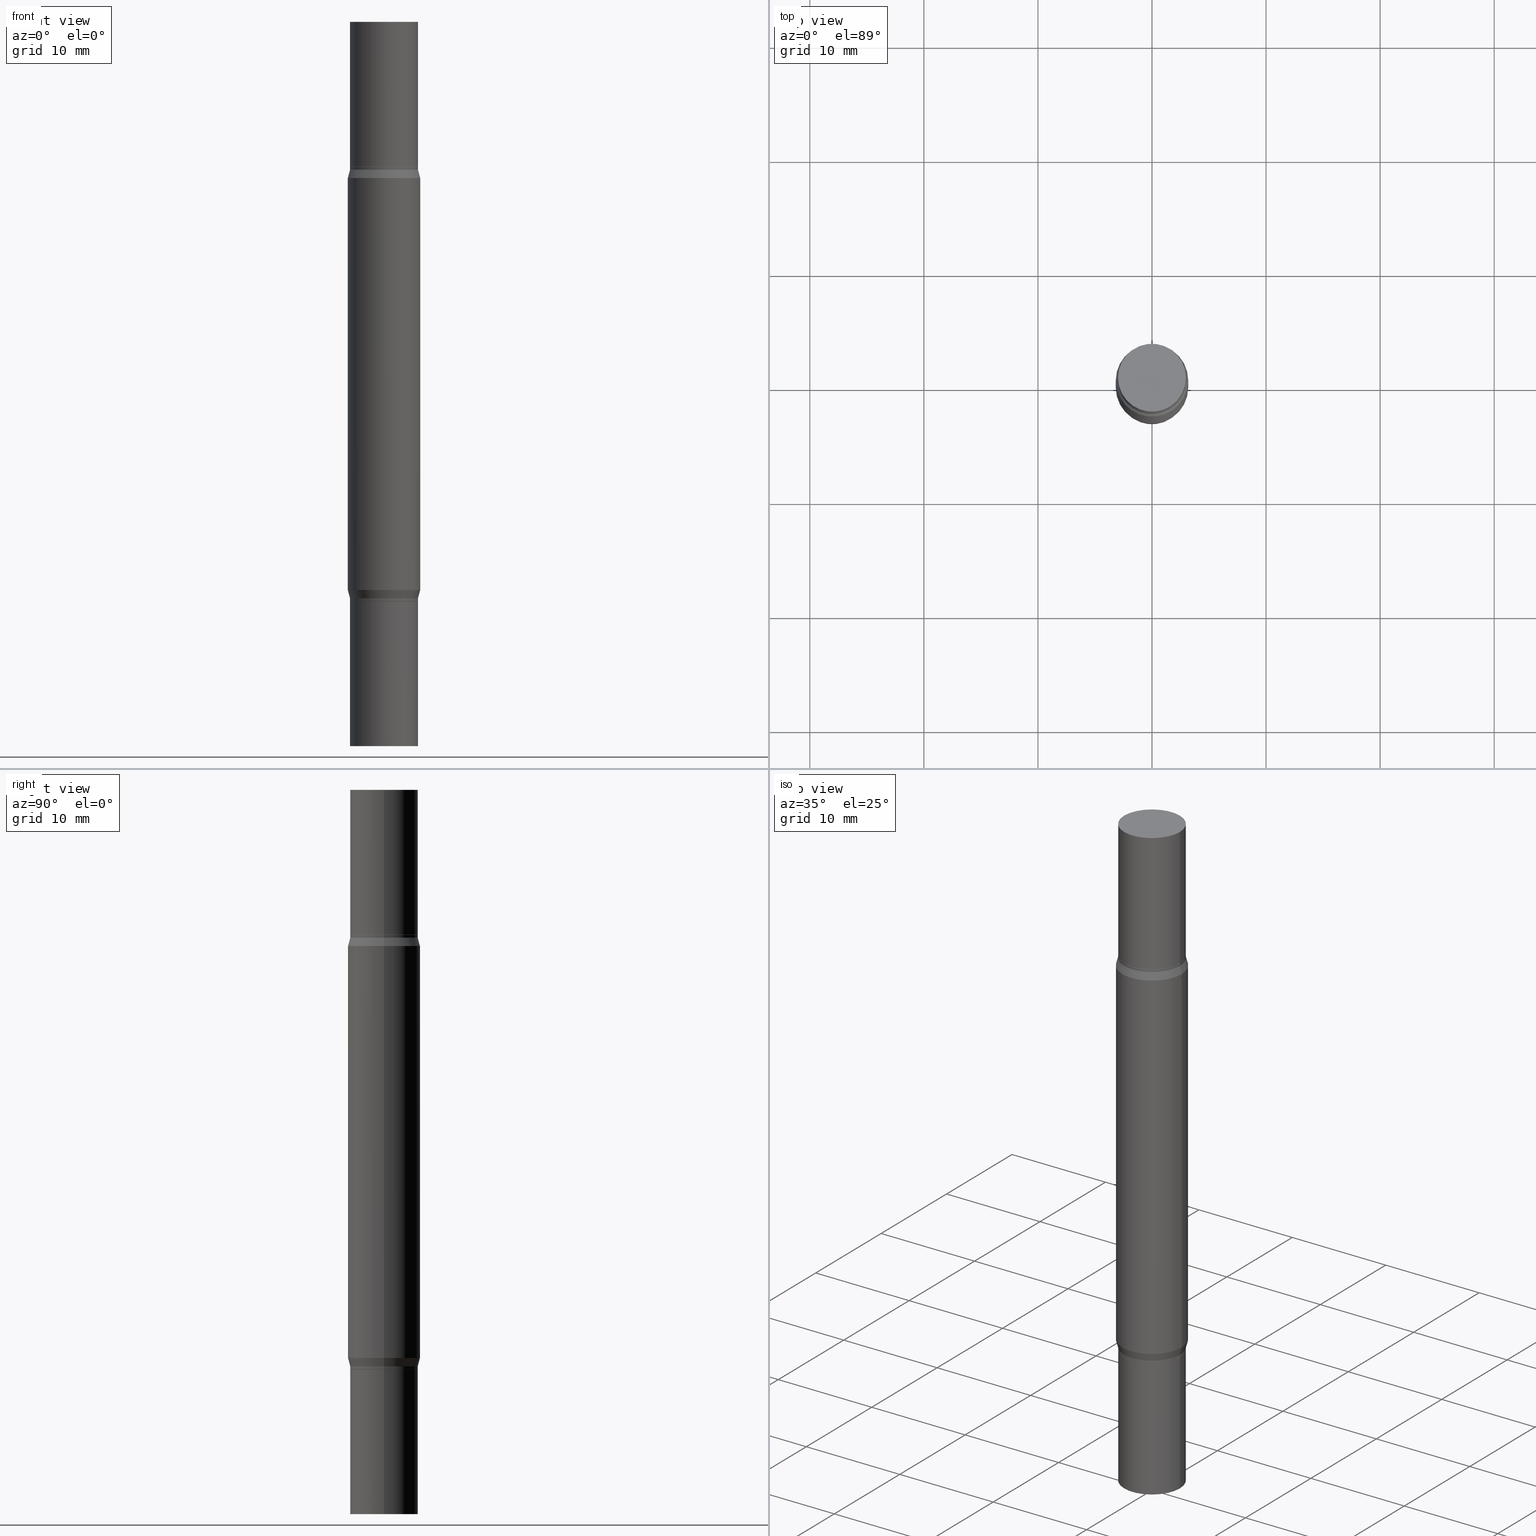
[diagram: canonical four-view strip — front | top / right | iso, engineering-drawing reading convention]
A machine part, canonical four-view strip (front | top / right | iso — engineering-drawing reading convention). The complete STEP part file that produces these views, byte-faithful:
ISO-10303-21;
HEADER;
FILE_DESCRIPTION (( 'STEP AP203' ),
    '1' );
FILE_NAME ('31527.STEP',
    '2024-03-04T16:02:21',
    ( '' ),
    ( '' ),
    'SwSTEP 2.0',
    'SolidWorks 2023',
    '' );
FILE_SCHEMA (( 'CONFIG_CONTROL_DESIGN' ));
ENDSEC;

DATA;
#1 = ORIENTED_EDGE ( 'NONE', *, *, #533, .F. ) ;
#2 = PRODUCT_DEFINITION ( 'UNKNOWN', '', #335, #683 ) ;
#3 = CARTESIAN_POINT ( 'NONE',  ( 0.1250000000000000000, -9.601978376966118441E-15, -2.499999999999999556 ) ) ;
#4 = AXIS2_PLACEMENT_3D ( 'NONE', #576, #795, #877 ) ;
#5 = VECTOR ( 'NONE', #572, 39.37007874015748143 ) ;
#6 = AXIS2_PLACEMENT_3D ( 'NONE', #839, #894, #731 ) ;
#7 = AXIS2_PLACEMENT_3D ( 'NONE', #31, #843, #326 ) ;
#8 = DIRECTION ( 'NONE',  ( 1.000000000000000000, -6.982962677686266711E-15, 0.000000000000000000 ) ) ;
#9 = VERTEX_POINT ( 'NONE', #341 ) ;
#10 = APPROVAL_ROLE ( '' ) ;
#11 = CARTESIAN_POINT ( 'NONE',  ( 0.1171999999999999986, -7.801365903511122804E-15, -2.000000000000000444 ) ) ;
#12 = ORIENTED_EDGE ( 'NONE', *, *, #928, .F. ) ;
#13 = EDGE_CURVE ( 'NONE', #325, #9, #295, .T. ) ;
#14 = ADVANCED_FACE ( 'NONE', ( #380 ), #825, .T. ) ;
#15 = CARTESIAN_POINT ( 'NONE',  ( 0.000000000000000000, -8.729108042255335103E-15, -2.499999999999999556 ) ) ;
#16 = ORIENTED_EDGE ( 'NONE', *, *, #364, .T. ) ;
#17 = CLOSED_SHELL ( 'NONE', ( #115, #842, #331, #86 ) ) ;
#18 = CYLINDRICAL_SURFACE ( 'NONE', #256, 0.1171999999999999986 ) ;
#19 = CARTESIAN_POINT ( 'NONE',  ( 6.113672015462842613E-29, 4.046951474745467748E-19, 5.463695987328526437E-16 ) ) ;
#20 = CIRCLE ( 'NONE', #603, 0.1171999999999996239 ) ;
#21 = EDGE_LOOP ( 'NONE', ( #575, #614, #674, #117 ) ) ;
#22 = PERSON_AND_ORGANIZATION ( #776, #740 ) ;
#23 = CARTESIAN_POINT ( 'NONE',  ( 0.000000000000000000, 0.000000000000000000, -1.249999999999999778 ) ) ;
#24 = CARTESIAN_POINT ( 'NONE',  ( 4.890937612370273754E-29, -6.982962677686291954E-15, -2.000000000000000444 ) ) ;
#25 = ORIENTED_EDGE ( 'NONE', *, *, #917, .F. ) ;
#26 = PERSON_AND_ORGANIZATION ( #776, #740 ) ;
#27 = DIRECTION ( 'NONE',  ( 0.000000000000000000, 3.491643216902134435E-15, 1.000000000000000000 ) ) ;
#28 = DIRECTION ( 'NONE',  ( 1.000000000000000000, -6.982962677686267499E-15, 0.000000000000000000 ) ) ;
#29 = ORIENTED_EDGE ( 'NONE', *, *, #497, .T. ) ;
#30 = APPROVAL ( #162, 'UNSPECIFIED' ) ;
#31 = CARTESIAN_POINT ( 'NONE',  ( 4.889714877967180953E-29, -1.747243754880567132E-15, -0.5004999999999991678 ) ) ;
#32 = CIRCLE ( 'NONE', #914, 0.1171999999999996239 ) ;
#33 = DIRECTION ( 'NONE',  ( 0.7071067811865595631, -7.406779323393320831E-15, -0.7071067811865354713 ) ) ;
#34 = AXIS2_PLACEMENT_3D ( 'NONE', #273, #939, #561 ) ;
#35 = ORIENTED_EDGE ( 'NONE', *, *, #497, .F. ) ;
#36 = EDGE_LOOP ( 'NONE', ( #292, #180, #146, #616 ) ) ;
#37 = LINE ( 'NONE', #625, #643 ) ;
#38 = DIRECTION ( 'NONE',  ( 1.000000000000000000, -6.982962677686261977E-15, 0.000000000000000000 ) ) ;
#39 = ORIENTED_EDGE ( 'NONE', *, *, #406, .T. ) ;
#40 = CARTESIAN_POINT ( 'NONE',  ( -0.1171999999999999986, -6.849621325398205664E-17, -0.4999999999999993339 ) ) ;
#41 = CARTESIAN_POINT ( 'NONE',  ( -0.1171999999999999154, -6.148460850706034029E-15, -1.999500000000000277 ) ) ;
#42 = EDGE_CURVE ( 'NONE', #84, #687, #383, .T. ) ;
#43 = CARTESIAN_POINT ( 'NONE',  ( 4.795295336410958635E-29, -1.882062336673981410E-15, -0.5391099962990381078 ) ) ;
#44 = ORIENTED_EDGE ( 'NONE', *, *, #960, .T. ) ;
#45 = ADVANCED_FACE ( 'NONE', ( #361 ), #657, .T. ) ;
#46 = DIRECTION ( 'NONE',  ( -2.445468806185136597E-29, 3.491481338843145583E-15, 1.000000000000000000 ) ) ;
#47 = AXIS2_PLACEMENT_3D ( 'NONE', #214, #514, #744 ) ;
#48 = DIRECTION ( 'NONE',  ( 1.000000000000000000, -6.982962677686265922E-15, 4.876176775795935793E-29 ) ) ;
#49 = AXIS2_PLACEMENT_3D ( 'NONE', #288, #500, #805 ) ;
#50 = VERTEX_POINT ( 'NONE', #747 ) ;
#51 = VECTOR ( 'NONE', #437, 39.37007874015748143 ) ;
#52 = DIRECTION ( 'NONE',  ( 1.000000000000000000, -6.982962677686261977E-15, 0.000000000000000000 ) ) ;
#53 = ADVANCED_FACE ( 'NONE', ( #668 ), #77, .T. ) ;
#54 = CIRCLE ( 'NONE', #532, 0.1171999999999999986 ) ;
#55 = CARTESIAN_POINT ( 'NONE',  ( 6.154742442311056095E-29, 5.921988397764257759E-17, 5.463695987328526437E-16 ) ) ;
#56 = ORIENTED_EDGE ( 'NONE', *, *, #695, .F. ) ;
#57 = ADVANCED_FACE ( 'NONE', ( #370 ), #447, .T. ) ;
#58 = CARTESIAN_POINT ( 'NONE',  ( -0.1171999999999997766, 8.327560863108358303E-16, -5.764991925778737911E-30 ) ) ;
#59 = DIRECTION ( 'NONE',  ( 1.000000000000000000, -6.982962677686266711E-15, 4.876176775795935793E-29 ) ) ;
#60 = DIRECTION ( 'NONE',  ( 1.000000000000000000, -6.982962677686262766E-15, 0.000000000000000000 ) ) ;
#61 = CARTESIAN_POINT ( 'NONE',  ( 4.795295336410958635E-29, -1.882062336673981410E-15, -0.5391099962990381078 ) ) ;
#62 = ORIENTED_EDGE ( 'NONE', *, *, #260, .F. ) ;
#63 = DIRECTION ( 'NONE',  ( 1.000000000000000000, -6.982962677686269866E-15, 0.000000000000000000 ) ) ;
#64 = DIRECTION ( 'NONE',  ( 1.000000000000000000, 0.000000000000000000, 0.000000000000000000 ) ) ;
#65 = FACE_OUTER_BOUND ( 'NONE', #244, .T. ) ;
#66 = ADVANCED_FACE ( 'NONE', ( #587 ), #236, .T. ) ;
#67 = DIRECTION ( 'NONE',  ( -2.445468806185136877E-29, -3.491805094961123683E-15, -1.000000000000000000 ) ) ;
#68 = ORIENTED_EDGE ( 'NONE', *, *, #880, .F. ) ;
#69 = VECTOR ( 'NONE', #898, 39.37007874015748143 ) ;
#70 = CARTESIAN_POINT ( 'NONE',  ( 4.890937612370273754E-29, -1.745497852333085568E-15, -0.4999999999999993339 ) ) ;
#71 = CYLINDRICAL_SURFACE ( 'NONE', #563, 0.1171999999999999986 ) ;
#72 = VERTEX_POINT ( 'NONE', #218 ) ;
#73 = DIRECTION ( 'NONE',  ( 2.445468806185136597E-29, 3.491805094961124077E-15, 1.000000000000000000 ) ) ;
#74 = CARTESIAN_POINT ( 'NONE',  ( 0.000000000000000000, 0.000000000000000000, 0.000000000000000000 ) ) ;
#75 = EDGE_LOOP ( 'NONE', ( #605, #188 ) ) ;
#76 = DIRECTION ( 'NONE',  ( 1.000000000000000000, -6.982962677686266711E-15, 0.000000000000000000 ) ) ;
#77 = CONICAL_SURFACE ( 'NONE', #702, 0.1171999999999996239, 0.2617993877991492413 ) ;
#78 = ORIENTED_EDGE ( 'NONE', *, *, #759, .T. ) ;
#79 = VECTOR ( 'NONE', #196, 39.37007874015748143 ) ;
#80 = EDGE_CURVE ( 'NONE', #199, #494, #627, .T. ) ;
#81 = AXIS2_PLACEMENT_3D ( 'NONE', #608, #909, #389 ) ;
#82 = DIRECTION ( 'NONE',  ( -2.445468806185136597E-29, -3.491805094961124077E-15, -1.000000000000000000 ) ) ;
#83 = ADVANCED_FACE ( 'NONE', ( #971 ), #208, .T. ) ;
#84 = VERTEX_POINT ( 'NONE', #506 ) ;
#85 = PERSON_AND_ORGANIZATION ( #776, #740 ) ;
#86 = ADVANCED_FACE ( 'NONE', ( #964 ), #818, .F. ) ;
#87 = CARTESIAN_POINT ( 'NONE',  ( 4.890937612370273754E-29, -1.745497852333085568E-15, -0.4999999999999993339 ) ) ;
#88 = ORIENTED_EDGE ( 'NONE', *, *, #828, .F. ) ;
#89 = FACE_OUTER_BOUND ( 'NONE', #479, .T. ) ;
#90 = LINE ( 'NONE', #96, #330 ) ;
#91 = ORIENTED_EDGE ( 'NONE', *, *, #474, .T. ) ;
#92 = CONICAL_SURFACE ( 'NONE', #879, 0.1166999999999999982, 0.7853981633974653764 ) ;
#93 = SHAPE_DEFINITION_REPRESENTATION ( #955, #957 ) ;
#94 = CARTESIAN_POINT ( 'NONE',  ( 0.1171999999999999986, -8.184032258248304553E-16, 5.714879181232836475E-30 ) ) ;
#95 = AXIS2_PLACEMENT_3D ( 'NONE', #666, #736, #132 ) ;
#96 = CARTESIAN_POINT ( 'NONE',  ( -0.1166999999999999982, -9.448777359931477726E-16, -0.4999999999999993339 ) ) ;
#97 = ORIENTED_EDGE ( 'NONE', *, *, #298, .T. ) ;
#98 = APPROVAL_DATE_TIME ( #440, #654 ) ;
#99 = DIRECTION ( 'NONE',  ( 1.000000000000000000, -6.982962677686269866E-15, 0.000000000000000000 ) ) ;
#100 = DIRECTION ( 'NONE',  ( 2.445468806185136597E-29, 3.491805094961124077E-15, 1.000000000000000000 ) ) ;
#101 = ADVANCED_FACE ( 'NONE', ( #906 ), #153, .T. ) ;
#102 = ORIENTED_EDGE ( 'NONE', *, *, #181, .F. ) ;
#103 = CARTESIAN_POINT ( 'NONE',  ( 4.890937612370273754E-29, -1.745497852333085568E-15, -0.4999999999999993339 ) ) ;
#104 = CARTESIAN_POINT ( 'NONE',  ( 0.1171999999999996239, -7.766451090122687999E-15, -1.989999999999999991 ) ) ;
#105 = VERTEX_POINT ( 'NONE', #144 ) ;
#106 = CIRCLE ( 'NONE', #346, 0.1171999999999999986 ) ;
#107 = DIRECTION ( 'NONE',  ( 1.000000000000000000, -6.982962677686266711E-15, 0.000000000000000000 ) ) ;
#108 = AXIS2_PLACEMENT_3D ( 'NONE', #246, #243, #166 ) ;
#109 = AXIS2_PLACEMENT_3D ( 'NONE', #332, #938, #688 ) ;
#110 = DIRECTION ( 'NONE',  ( 1.000000000000000000, -6.982962677686267499E-15, 0.000000000000000000 ) ) ;
#111 = ORIENTED_EDGE ( 'NONE', *, *, #667, .T. ) ;
#112 = CIRCLE ( 'NONE', #443, 0.1250000000000000000 ) ;
#113 = DIRECTION ( 'NONE',  ( -2.445468806185136597E-29, 3.491481338843145583E-15, 1.000000000000000000 ) ) ;
#114 = DIRECTION ( 'NONE',  ( -2.445468806185136877E-29, -3.491805094961123683E-15, -1.000000000000000000 ) ) ;
#115 = ADVANCED_FACE ( 'NONE', ( #442 ), #71, .T. ) ;
#116 = DIRECTION ( 'NONE',  ( -2.445468806185136597E-29, 3.491481338843145583E-15, 1.000000000000000000 ) ) ;
#117 = ORIENTED_EDGE ( 'NONE', *, *, #954, .F. ) ;
#118 = PLANE ( 'NONE',  #49 ) ;
#119 = DIRECTION ( 'NONE',  ( 2.445468806185136597E-29, 3.491805094961124077E-15, 1.000000000000000000 ) ) ;
#120 = EDGE_CURVE ( 'NONE', #687, #84, #754, .T. ) ;
#121 = EDGE_LOOP ( 'NONE', ( #263, #232, #534, #25 ) ) ;
#122 = LINE ( 'NONE', #58, #905 ) ;
#123 = AXIS2_PLACEMENT_3D ( 'NONE', #61, #284, #76 ) ;
#124 = CARTESIAN_POINT ( 'NONE',  ( 6.154742442311056095E-29, -8.669888158277696247E-15, -2.500000000000000000 ) ) ;
#125 = CIRCLE ( 'NONE', #853, 0.1166999999999999982 ) ;
#126 = ADVANCED_FACE ( 'NONE', ( #829 ), #223, .T. ) ;
#127 = ORIENTED_EDGE ( 'NONE', *, *, #680, .T. ) ;
#128 = LOCAL_TIME ( 11, 2, 21.00000000000000000, #393 ) ;
#129 = AXIS2_PLACEMENT_3D ( 'NONE', #513, #817, #368 ) ;
#130 = DIRECTION ( 'NONE',  ( 0.2588190451025205729, -5.180148453816002468E-15, -0.9659258262890684232 ) ) ;
#131 = VECTOR ( 'NONE', #693, 39.37007874015748143 ) ;
#132 = DIRECTION ( 'NONE',  ( 0.000000000000000000, 1.000000000000000000, -4.370956789862821150E-15 ) ) ;
#133 = CARTESIAN_POINT ( 'NONE',  ( 0.1171999999999999986, -2.563901078157915826E-15, -0.4999999999999993339 ) ) ;
#134 = CC_DESIGN_PERSON_AND_ORGANIZATION_ASSIGNMENT ( #26, #322, ( #567 ) ) ;
#135 = VERTEX_POINT ( 'NONE', #133 ) ;
#136 = DIRECTION ( 'NONE',  ( 1.000000000000000000, -6.982962677686265922E-15, 0.000000000000000000 ) ) ;
#137 = LINE ( 'NONE', #653, #583 ) ;
#138 = CARTESIAN_POINT ( 'NONE',  ( 0.1166999999999999982, -7.797874422172279797E-15, -2.000000000000000444 ) ) ;
#139 = DIRECTION ( 'NONE',  ( 2.438088387897959208E-29, 3.491805094961123683E-15, 1.000000000000000000 ) ) ;
#140 = VERTEX_POINT ( 'NONE', #768 ) ;
#141 = CALENDAR_DATE ( 2024, 4, 3 ) ;
#142 = AXIS2_PLACEMENT_3D ( 'NONE', #899, #525, #150 ) ;
#143 = DIRECTION ( 'NONE',  ( 1.000000000000000000, -6.982962677686262766E-15, 0.000000000000000000 ) ) ;
#144 = CARTESIAN_POINT ( 'NONE',  ( 0.1171999999999999154, -2.565646980705395418E-15, -0.5004999999999991678 ) ) ;
#145 =( GEOMETRIC_REPRESENTATION_CONTEXT ( 3 ) GLOBAL_UNCERTAINTY_ASSIGNED_CONTEXT ( ( #453 ) ) GLOBAL_UNIT_ASSIGNED_CONTEXT ( ( #606, #374, #885 ) ) REPRESENTATION_CONTEXT ( 'NONE', 'WORKASPACE' ) );
#146 = ORIENTED_EDGE ( 'NONE', *, *, #524, .T. ) ;
#147 = COORDINATED_UNIVERSAL_TIME_OFFSET ( 5, 0, .BEHIND. ) ;
#148 = EDGE_CURVE ( 'NONE', #788, #745, #90, .T. ) ;
#149 = CARTESIAN_POINT ( 'NONE',  ( -0.1171999999999999986, -7.925057676916510614E-15, -2.499999999999999556 ) ) ;
#150 = DIRECTION ( 'NONE',  ( 1.000000000000000000, -6.982962677686266711E-15, 0.000000000000000000 ) ) ;
#151 = ORIENTED_EDGE ( 'NONE', *, *, #320, .F. ) ;
#152 = DIRECTION ( 'NONE',  ( -2.445468806185136877E-29, -3.491805094961123683E-15, -1.000000000000000000 ) ) ;
#153 = CYLINDRICAL_SURFACE ( 'NONE', #864, 0.1171999999999997766 ) ;
#154 = ADVANCED_FACE ( 'NONE', ( #613 ), #237, .T. ) ;
#155 = DIMENSIONAL_EXPONENTS ( 1.000000000000000000, 0.000000000000000000, 0.000000000000000000, 0.000000000000000000, 0.000000000000000000, 0.000000000000000000, 0.000000000000000000 ) ;
#156 = ORIENTED_EDGE ( 'NONE', *, *, #42, .F. ) ;
#157 = APPROVAL_DATE_TIME ( #529, #30 ) ;
#158 = ADVANCED_FACE ( 'NONE', ( #531 ), #92, .T. ) ;
#159 = DIRECTION ( 'NONE',  ( -2.445468806185136597E-29, -3.491805094961124077E-15, -1.000000000000000000 ) ) ;
#160 = EDGE_CURVE ( 'NONE', #845, #9, #106, .T. ) ;
#161 = ORIENTED_EDGE ( 'NONE', *, *, #611, .T. ) ;
#162 = APPROVAL_STATUS ( 'not_yet_approved' ) ;
#163 = CIRCLE ( 'NONE', #552, 0.1171999999999999154 ) ;
#164 = APPROVAL_PERSON_ORGANIZATION ( #811, #908, #512 ) ;
#165 = CONICAL_SURFACE ( 'NONE', #770, 0.1171999999999996239, 0.2617993877991492413 ) ;
#166 = DIRECTION ( 'NONE',  ( 1.000000000000000000, -6.982962677686266711E-15, 0.000000000000000000 ) ) ;
#167 = VERTEX_POINT ( 'NONE', #11 ) ;
#168 = DIRECTION ( 'NONE',  ( 1.000000000000000000, -6.982962677686266711E-15, 0.000000000000000000 ) ) ;
#169 = DIRECTION ( 'NONE',  ( -2.445468806185136597E-29, 3.491481338843145583E-15, 1.000000000000000000 ) ) ;
#170 = EDGE_LOOP ( 'NONE', ( #226, #1 ) ) ;
#171 = DIRECTION ( 'NONE',  ( 1.000000000000000000, -6.982962677686265922E-15, 4.876176775795935793E-29 ) ) ;
#172 = CARTESIAN_POINT ( 'NONE',  ( 4.866482924308422209E-29, -1.780415903282698911E-15, -0.5099999999999994538 ) ) ;
#173 = ORIENTED_EDGE ( 'NONE', *, *, #612, .F. ) ;
#174 = CARTESIAN_POINT ( 'NONE',  ( 0.000000000000000000, 0.000000000000000000, 0.000000000000000000 ) ) ;
#175 = CONICAL_SURFACE ( 'NONE', #518, 0.1166999999999999982, 0.7853981633974653764 ) ;
#176 = ADVANCED_FACE ( 'NONE', ( #527 ), #756, .F. ) ;
#177 = CIRCLE ( 'NONE', #129, 0.1171999999999996239 ) ;
#178 = DIRECTION ( 'NONE',  ( 0.7071067811865595631, -7.406779323393320831E-15, -0.7071067811865354713 ) ) ;
#179 = AXIS2_PLACEMENT_3D ( 'NONE', #363, #892, #416 ) ;
#180 = ORIENTED_EDGE ( 'NONE', *, *, #120, .F. ) ;
#181 = EDGE_CURVE ( 'NONE', #936, #838, #299, .T. ) ;
#182 = LINE ( 'NONE', #94, #882 ) ;
#183 = FACE_OUTER_BOUND ( 'NONE', #769, .T. ) ;
#184 = EDGE_LOOP ( 'NONE', ( #803, #193 ) ) ;
#185 = PLANE ( 'NONE',  #722 ) ;
#186 = DIRECTION ( 'NONE',  ( -2.445468806185136597E-29, -3.491805094961124077E-15, -1.000000000000000000 ) ) ;
#187 = EDGE_CURVE ( 'NONE', #717, #381, #819, .T. ) ;
#188 = ORIENTED_EDGE ( 'NONE', *, *, #530, .T. ) ;
#189 = ADVANCED_FACE ( 'NONE', ( #459 ), #904, .T. ) ;
#190 = CARTESIAN_POINT ( 'NONE',  ( 6.113672015462842613E-29, 4.046951474745467748E-19, 5.463695987328526437E-16 ) ) ;
#191 = CARTESIAN_POINT ( 'NONE',  ( 0.1171999999999997766, -9.547511268080164375E-15, -2.499999999999999556 ) ) ;
#192 = DIRECTION ( 'NONE',  ( 2.445468806185136597E-29, 3.491805094961124077E-15, 1.000000000000000000 ) ) ;
#193 = ORIENTED_EDGE ( 'NONE', *, *, #307, .T. ) ;
#194 = CIRCLE ( 'NONE', #969, 0.1171999999999999986 ) ;
#195 = ORIENTED_EDGE ( 'NONE', *, *, #255, .F. ) ;
#196 = DIRECTION ( 'NONE',  ( 0.2588190451025205729, -5.180148453816002468E-15, -0.9659258262890684232 ) ) ;
#197 = EDGE_CURVE ( 'NONE', #647, #321, #20, .T. ) ;
#198 = FACE_OUTER_BOUND ( 'NONE', #623, .T. ) ;
#199 = VERTEX_POINT ( 'NONE', #466 ) ;
#200 = DIRECTION ( 'NONE',  ( 1.000000000000000000, -6.982962677686269866E-15, 0.000000000000000000 ) ) ;
#201 = FACE_OUTER_BOUND ( 'NONE', #765, .T. ) ;
#202 = ORIENTED_EDGE ( 'NONE', *, *, #777, .T. ) ;
#203 = CARTESIAN_POINT ( 'NONE',  ( 0.1171999999999999154, -7.799620162841700511E-15, -1.999500000000000277 ) ) ;
#204 = AXIS2_PLACEMENT_3D ( 'NONE', #809, #139, #751 ) ;
#205 = PRODUCT_RELATED_PRODUCT_CATEGORY ( 'detail', '', ( #797 ) ) ;
#206 = CARTESIAN_POINT ( 'NONE',  ( 0.000000000000000000, -8.729108042255335103E-15, -2.499999999999999556 ) ) ;
#207 = AXIS2_PLACEMENT_3D ( 'NONE', #430, #113, #810 ) ;
#208 = CYLINDRICAL_SURFACE ( 'NONE', #366, 0.1171999999999999986 ) ;
#209 = LOCAL_TIME ( 11, 2, 21.00000000000000000, #902 ) ;
#210 = ORIENTED_EDGE ( 'NONE', *, *, #230, .T. ) ;
#211 = CARTESIAN_POINT ( 'NONE',  ( 4.890937612370273754E-29, -1.745497852333085568E-15, -0.4999999999999993339 ) ) ;
#212 = PERSON_AND_ORGANIZATION_ROLE ( 'creator' ) ;
#213 = PLANE ( 'NONE',  #757 ) ;
#214 = CARTESIAN_POINT ( 'NONE',  ( 4.890937612370273754E-29, -1.745497852333085568E-15, -0.4999999999999993339 ) ) ;
#215 = EDGE_LOOP ( 'NONE', ( #786, #635, #377, #931 ) ) ;
#216 = APPLICATION_PROTOCOL_DEFINITION ( 'international standard', 'config_control_design', 1994, #516 ) ;
#217 = CYLINDRICAL_SURFACE ( 'NONE', #807, 0.1250000000000000000 ) ;
#218 = CARTESIAN_POINT ( 'NONE',  ( 0.1171999999999999154, -2.565646980705395418E-15, -0.5004999999999991678 ) ) ;
#219 = ORIENTED_EDGE ( 'NONE', *, *, #676, .F. ) ;
#220 = ADVANCED_FACE ( 'NONE', ( #761 ), #849, .T. ) ;
#221 = PERSON_AND_ORGANIZATION ( #776, #740 ) ;
#222 = DIRECTION ( 'NONE',  ( 1.000000000000000000, -6.982962677686265133E-15, 0.000000000000000000 ) ) ;
#223 = CYLINDRICAL_SURFACE ( 'NONE', #943, 0.1171999999999999986 ) ;
#224 = AXIS2_PLACEMENT_3D ( 'NONE', #465, #636, #394 ) ;
#225 = LOCAL_TIME ( 11, 2, 21.00000000000000000, #735 ) ;
#226 = ORIENTED_EDGE ( 'NONE', *, *, #230, .F. ) ;
#227 = CIRCLE ( 'NONE', #724, 0.1250000000000000000 ) ;
#228 = CALENDAR_DATE ( 2024, 4, 3 ) ;
#229 = CIRCLE ( 'NONE', #743, 0.1171999999999999986 ) ;
#230 = EDGE_CURVE ( 'NONE', #468, #250, #458, .T. ) ;
#231 = CARTESIAN_POINT ( 'NONE',  ( 0.000000000000000000, -8.729108042255335103E-15, -2.499999999999999556 ) ) ;
#232 = ORIENTED_EDGE ( 'NONE', *, *, #467, .T. ) ;
#233 = EDGE_CURVE ( 'NONE', #199, #105, #924, .T. ) ;
#234 = FACE_OUTER_BOUND ( 'NONE', #345, .T. ) ;
#235 = ORIENTED_EDGE ( 'NONE', *, *, #728, .T. ) ;
#236 = CONICAL_SURFACE ( 'NONE', #784, 0.1171999999999996239, 0.2617993877991492413 ) ;
#237 = CYLINDRICAL_SURFACE ( 'NONE', #452, 0.1171999999999997766 ) ;
#238 = ORIENTED_EDGE ( 'NONE', *, *, #850, .F. ) ;
#239 = ADVANCED_FACE ( 'NONE', ( #475 ), #568, .T. ) ;
#240 = CIRCLE ( 'NONE', #725, 0.1166999999999999982 ) ;
#241 = CARTESIAN_POINT ( 'NONE',  ( -0.1171999999999997766, -7.925057676916513769E-15, -2.499999999999999556 ) ) ;
#242 = AXIS2_PLACEMENT_3D ( 'NONE', #662, #956, #503 ) ;
#243 = DIRECTION ( 'NONE',  ( 2.445468806185136597E-29, 3.491805094961124077E-15, 1.000000000000000000 ) ) ;
#244 = EDGE_LOOP ( 'NONE', ( #12, #775, #820, #758 ) ) ;
#245 = CARTESIAN_POINT ( 'NONE',  ( 4.890937612370273754E-29, -1.745497852333085568E-15, -0.4999999999999993339 ) ) ;
#246 = CARTESIAN_POINT ( 'NONE',  ( 6.113672015462842613E-29, 4.046951474745467748E-19, 5.463695987328526437E-16 ) ) ;
#247 = ORIENTED_EDGE ( 'NONE', *, *, #148, .T. ) ;
#248 = DIRECTION ( 'NONE',  ( -2.445468806185136877E-29, 3.491481338843145188E-15, 1.000000000000000000 ) ) ;
#249 = DIRECTION ( 'NONE',  ( 1.000000000000000000, -6.982962677686267499E-15, 0.000000000000000000 ) ) ;
#250 = VERTEX_POINT ( 'NONE', #690 ) ;
#251 = CARTESIAN_POINT ( 'NONE',  ( 4.890937612370273754E-29, -6.982962677686291954E-15, -2.000000000000000444 ) ) ;
#252 = VECTOR ( 'NONE', #523, 39.37007874015748143 ) ;
#253 = AXIS2_PLACEMENT_3D ( 'NONE', #833, #684, #930 ) ;
#254 = CYLINDRICAL_SURFACE ( 'NONE', #949, 0.1171999999999997766 ) ;
#255 = EDGE_CURVE ( 'NONE', #945, #325, #229, .T. ) ;
#256 = AXIS2_PLACEMENT_3D ( 'NONE', #317, #713, #200 ) ;
#257 = EDGE_LOOP ( 'NONE', ( #267, #937, #691, #62 ) ) ;
#258 = DIRECTION ( 'NONE',  ( 1.000000000000000000, -6.982962677686265133E-15, 0.000000000000000000 ) ) ;
#259 = FACE_OUTER_BOUND ( 'NONE', #681, .T. ) ;
#260 = EDGE_CURVE ( 'NONE', #439, #405, #504, .T. ) ;
#261 = EDGE_CURVE ( 'NONE', #357, #834, #286, .T. ) ;
#262 = DIRECTION ( 'NONE',  ( 1.000000000000000000, -6.982962677686265922E-15, 0.000000000000000000 ) ) ;
#263 = ORIENTED_EDGE ( 'NONE', *, *, #671, .F. ) ;
#264 = ORIENTED_EDGE ( 'NONE', *, *, #962, .T. ) ;
#265 = DIRECTION ( 'NONE',  ( -2.445468806185136597E-29, -3.491805094961124077E-15, -1.000000000000000000 ) ) ;
#266 = FACE_OUTER_BOUND ( 'NONE', #121, .T. ) ;
#267 = ORIENTED_EDGE ( 'NONE', *, *, #780, .F. ) ;
#268 = LINE ( 'NONE', #566, #582 ) ;
#269 = CARTESIAN_POINT ( 'NONE',  ( -0.1171999999999999986, 8.327560863108374081E-16, -5.764991925778749121E-30 ) ) ;
#270 = EDGE_LOOP ( 'NONE', ( #515, #896, #629, #418 ) ) ;
#271 = VECTOR ( 'NONE', #33, 39.37007874015748143 ) ;
#272 = CARTESIAN_POINT ( 'NONE',  ( -0.1171999999999999986, -7.925057676916510614E-15, -2.499999999999999556 ) ) ;
#273 = CARTESIAN_POINT ( 'NONE',  ( 4.866482924308422209E-29, -1.780415903282698911E-15, -0.5099999999999994538 ) ) ;
#274 = DIRECTION ( 'NONE',  ( 1.000000000000000000, -6.982962677686266711E-15, 0.000000000000000000 ) ) ;
#275 = ORIENTED_EDGE ( 'NONE', *, *, #815, .T. ) ;
#276 = PLANE ( 'NONE',  #4 ) ;
#277 = CC_DESIGN_PERSON_AND_ORGANIZATION_ASSIGNMENT ( #221, #449, ( #797 ) ) ;
#278 = DIRECTION ( 'NONE',  ( 1.000000000000000000, -6.982962677686265922E-15, 2.260776888683160832E-33 ) ) ;
#279 = ADVANCED_FACE ( 'NONE', ( #234 ), #351, .T. ) ;
#280 = VERTEX_POINT ( 'NONE', #802 ) ;
#281 = ORIENTED_EDGE ( 'NONE', *, *, #862, .F. ) ;
#282 = FACE_OUTER_BOUND ( 'NONE', #976, .T. ) ;
#283 = LINE ( 'NONE', #241, #771 ) ;
#284 = DIRECTION ( 'NONE',  ( 2.445468806185136597E-29, 3.491805094961124077E-15, 1.000000000000000000 ) ) ;
#285 = LOCAL_TIME ( 11, 2, 21.00000000000000000, #147 ) ;
#286 = CIRCLE ( 'NONE', #81, 0.1250000000000000000 ) ;
#287 = EDGE_LOOP ( 'NONE', ( #712, #642, #97, #901 ) ) ;
#288 = CARTESIAN_POINT ( 'NONE',  ( 6.154742442311056095E-29, 5.921988397764257759E-17, 5.463695987328526437E-16 ) ) ;
#289 = LINE ( 'NONE', #585, #69 ) ;
#290 = ADVANCED_FACE ( 'NONE', ( #719 ), #165, .T. ) ;
#291 = DIRECTION ( 'NONE',  ( 1.000000000000000000, -6.982962677686265133E-15, 0.000000000000000000 ) ) ;
#292 = ORIENTED_EDGE ( 'NONE', *, *, #887, .F. ) ;
#293 = LINE ( 'NONE', #796, #946 ) ;
#294 = FACE_OUTER_BOUND ( 'NONE', #36, .T. ) ;
#295 = LINE ( 'NONE', #732, #423 ) ;
#296 = ORIENTED_EDGE ( 'NONE', *, *, #645, .F. ) ;
#297 = APPROVAL_DATE_TIME ( #378, #908 ) ;
#298 = EDGE_CURVE ( 'NONE', #799, #72, #859, .T. ) ;
#299 = CIRCLE ( 'NONE', #848, 0.1171999999999999154 ) ;
#300 = DIRECTION ( 'NONE',  ( 0.7071067811865595631, -2.468850131082382884E-15, 0.7071067811865354713 ) ) ;
#301 = CARTESIAN_POINT ( 'NONE',  ( 0.000000000000000000, 0.000000000000000000, 0.000000000000000000 ) ) ;
#302 = AXIS2_PLACEMENT_3D ( 'NONE', #723, #490, #52 ) ;
#303 = CONICAL_SURFACE ( 'NONE', #34, 0.1171999999999996239, 0.2617993877991492413 ) ;
#304 = ORIENTED_EDGE ( 'NONE', *, *, #741, .T. ) ;
#305 = CIRCLE ( 'NONE', #663, 0.1171999999999999986 ) ;
#306 = LINE ( 'NONE', #594, #252 ) ;
#307 = EDGE_CURVE ( 'NONE', #494, #199, #869, .T. ) ;
#308 = AXIS2_PLACEMENT_3D ( 'NONE', #913, #578, #168 ) ;
#309 = DIRECTION ( 'NONE',  ( -2.445468806185136597E-29, -3.491805094961124077E-15, -1.000000000000000000 ) ) ;
#310 = ORIENTED_EDGE ( 'NONE', *, *, #435, .F. ) ;
#311 = ADVANCED_FACE ( 'NONE', ( #198 ), #726, .F. ) ;
#312 = CARTESIAN_POINT ( 'NONE',  ( 0.000000000000000000, -8.729108042255335103E-15, -2.499999999999999556 ) ) ;
#313 = ORIENTED_EDGE ( 'NONE', *, *, #612, .T. ) ;
#314 = MANIFOLD_SOLID_BREP ( 'Mirror1[4]', #980 ) ;
#315 = DIRECTION ( 'NONE',  ( 1.000000000000000000, -6.982962677686266711E-15, 0.000000000000000000 ) ) ;
#316 = ORIENTED_EDGE ( 'NONE', *, *, #598, .F. ) ;
#317 = CARTESIAN_POINT ( 'NONE',  ( 0.000000000000000000, -8.729108042255335103E-15, -2.499999999999999556 ) ) ;
#318 = AXIS2_PLACEMENT_3D ( 'NONE', #24, #169, #396 ) ;
#319 = DIRECTION ( 'NONE',  ( 2.445468806185136597E-29, 3.491805094961124077E-15, 1.000000000000000000 ) ) ;
#320 = EDGE_CURVE ( 'NONE', #669, #135, #194, .T. ) ;
#321 = VERTEX_POINT ( 'NONE', #557 ) ;
#322 = PERSON_AND_ORGANIZATION_ROLE ( 'classification_officer' ) ;
#323 = DIRECTION ( 'NONE',  ( -0.2588190451025205729, 5.211531920934545520E-15, 0.9659258262890684232 ) ) ;
#324 = DIRECTION ( 'NONE',  ( 1.000000000000000000, -6.982962677686265133E-15, 0.000000000000000000 ) ) ;
#325 = VERTEX_POINT ( 'NONE', #798 ) ;
#326 = DIRECTION ( 'NONE',  ( 1.000000000000000000, -6.982962677686266711E-15, 0.000000000000000000 ) ) ;
#327 = ADVANCED_FACE ( 'NONE', ( #266 ), #254, .T. ) ;
#328 = CARTESIAN_POINT ( 'NONE',  ( 4.795295336410958635E-29, -6.846410855445973637E-15, -1.960890003700961337 ) ) ;
#329 = EDGE_LOOP ( 'NONE', ( #373, #390, #498, #219 ) ) ;
#330 = VECTOR ( 'NONE', #915, 39.37007874015748143 ) ;
#331 = ADVANCED_FACE ( 'NONE', ( #201 ), #496, .T. ) ;
#332 = CARTESIAN_POINT ( 'NONE',  ( 8.184032258248792661E-16, 0.1171999999999930181, -2.000000000000000444 ) ) ;
#333 = AXIS2_PLACEMENT_3D ( 'NONE', #436, #734, #63 ) ;
#334 = EDGE_CURVE ( 'NONE', #762, #140, #227, .T. ) ;
#335 = PRODUCT_DEFINITION_FORMATION_WITH_SPECIFIED_SOURCE ( 'ANY', '', #797, .NOT_KNOWN. ) ;
#336 = CONICAL_SURFACE ( 'NONE', #242, 0.1171999999999996239, 0.2617993877991492413 ) ;
#337 = CARTESIAN_POINT ( 'NONE',  ( 4.866482924308422209E-29, -1.780415903282698911E-15, -0.5099999999999994538 ) ) ;
#338 = ORIENTED_EDGE ( 'NONE', *, *, #752, .F. ) ;
#339 = CARTESIAN_POINT ( 'NONE',  ( 0.1171999999999996239, -2.598819129107527000E-15, -0.5099999999999994538 ) ) ;
#340 = DIRECTION ( 'NONE',  ( 1.000000000000000000, -6.982962677686266711E-15, 0.000000000000000000 ) ) ;
#341 = CARTESIAN_POINT ( 'NONE',  ( 0.1171999999999999986, -2.563901078157915826E-15, -0.4999999999999993339 ) ) ;
#342 = ORIENTED_EDGE ( 'NONE', *, *, #435, .T. ) ;
#343 = CARTESIAN_POINT ( 'NONE',  ( -0.1250000000000000000, -2.265644755392513326E-15, -1.249999999999999778 ) ) ;
#344 = DIRECTION ( 'NONE',  ( 2.445468806185136597E-29, 3.491805094961124077E-15, 1.000000000000000000 ) ) ;
#345 = EDGE_LOOP ( 'NONE', ( #210, #538, #338, #310 ) ) ;
#346 = AXIS2_PLACEMENT_3D ( 'NONE', #622, #686, #541 ) ;
#347 = CARTESIAN_POINT ( 'NONE',  ( 4.866482924308422209E-29, -6.948047864297860305E-15, -1.989999999999999991 ) ) ;
#348 = VECTOR ( 'NONE', #571, 39.37007874015748143 ) ;
#349 = VECTOR ( 'NONE', #486, 39.37007874015748143 ) ;
#350 = CARTESIAN_POINT ( 'NONE',  ( 4.890937612370273754E-29, -1.745497852333085568E-15, -0.4999999999999993339 ) ) ;
#351 = CONICAL_SURFACE ( 'NONE', #253, 0.1166999999999999982, 0.7853981633974653764 ) ;
#352 = ORIENTED_EDGE ( 'NONE', *, *, #298, .F. ) ;
#353 = EDGE_CURVE ( 'NONE', #409, #814, #586, .T. ) ;
#354 = LINE ( 'NONE', #272, #348 ) ;
#355 = CARTESIAN_POINT ( 'NONE',  ( 0.1166999999999999982, -7.797874422172279797E-15, -2.000000000000000444 ) ) ;
#356 = ORIENTED_EDGE ( 'NONE', *, *, #120, .T. ) ;
#357 = VERTEX_POINT ( 'NONE', #779 ) ;
#358 = CARTESIAN_POINT ( 'NONE',  ( -0.1166999999999999982, -9.440355627674452081E-16, -0.4999999999999993339 ) ) ;
#359 = LINE ( 'NONE', #3, #456 ) ;
#360 = CYLINDRICAL_SURFACE ( 'NONE', #372, 0.1250000000000000000 ) ;
#361 = FACE_OUTER_BOUND ( 'NONE', #287, .T. ) ;
#362 = EDGE_LOOP ( 'NONE', ( #958, #401 ) ) ;
#363 = CARTESIAN_POINT ( 'NONE',  ( 4.890937612370273754E-29, -1.745497852333085568E-15, -0.4999999999999993339 ) ) ;
#364 = EDGE_CURVE ( 'NONE', #717, #135, #421, .T. ) ;
#365 = MECHANICAL_CONTEXT ( 'NONE', #516, 'mechanical' ) ;
#366 = AXIS2_PLACEMENT_3D ( 'NONE', #301, #433, #520 ) ;
#367 = EDGE_CURVE ( 'NONE', #50, #422, #916, .T. ) ;
#368 = DIRECTION ( 'NONE',  ( 1.000000000000000000, -6.982962677686267499E-15, 0.000000000000000000 ) ) ;
#369 = CIRCLE ( 'NONE', #679, 0.1250000000000000000 ) ;
#370 = FACE_OUTER_BOUND ( 'NONE', #270, .T. ) ;
#371 = CC_DESIGN_APPROVAL ( #908, ( #2 ) ) ;
#372 = AXIS2_PLACEMENT_3D ( 'NONE', #206, #591, #60 ) ;
#373 = ORIENTED_EDGE ( 'NONE', *, *, #367, .T. ) ;
#374 =( NAMED_UNIT ( * ) PLANE_ANGLE_UNIT ( ) SI_UNIT ( $, .RADIAN. ) );
#375 = CARTESIAN_POINT ( 'NONE',  ( 4.890937612370273754E-29, -6.982962677686291954E-15, -2.000000000000000444 ) ) ;
#376 = DIRECTION ( 'NONE',  ( 1.000000000000000000, -6.982962677686262766E-15, 0.000000000000000000 ) ) ;
#377 = ORIENTED_EDGE ( 'NONE', *, *, #676, .T. ) ;
#378 = DATE_AND_TIME ( #581, #285 ) ;
#379 = FACE_OUTER_BOUND ( 'NONE', #972, .T. ) ;
#380 = FACE_OUTER_BOUND ( 'NONE', #910, .T. ) ;
#381 = VERTEX_POINT ( 'NONE', #481 ) ;
#382 =( LENGTH_UNIT ( ) NAMED_UNIT ( * ) SI_UNIT ( $, .METRE. ) );
#383 = CIRCLE ( 'NONE', #123, 0.1250000000000000000 ) ;
#384 = CARTESIAN_POINT ( 'NONE',  ( 0.000000000000000000, -8.729108042255335103E-15, -2.499999999999999556 ) ) ;
#385 = VECTOR ( 'NONE', #742, 39.37007874015748143 ) ;
#386 = EDGE_LOOP ( 'NONE', ( #941, #29, #127, #830 ) ) ;
#387 = CC_DESIGN_DATE_AND_TIME_ASSIGNMENT ( #697, #543, ( #567 ) ) ;
#388 = AXIS2_PLACEMENT_3D ( 'NONE', #410, #618, #171 ) ;
#389 = DIRECTION ( 'NONE',  ( 0.000000000000000000, 1.000000000000000000, -4.370956789862821150E-15 ) ) ;
#390 = ORIENTED_EDGE ( 'NONE', *, *, #434, .T. ) ;
#391 = CARTESIAN_POINT ( 'NONE',  ( 4.889714877967180953E-29, -6.981216937016870451E-15, -1.999500000000000277 ) ) ;
#392 = EDGE_LOOP ( 'NONE', ( #547, #448, #876, #966 ) ) ;
#393 = COORDINATED_UNIVERSAL_TIME_OFFSET ( 5, 0, .BEHIND. ) ;
#394 = DIRECTION ( 'NONE',  ( 1.000000000000000000, -6.982962677686266711E-15, 0.000000000000000000 ) ) ;
#395 = ADVANCED_FACE ( 'NONE', ( #183 ), #950, .T. ) ;
#396 = DIRECTION ( 'NONE',  ( 1.000000000000000000, -6.982962677686265133E-15, 0.000000000000000000 ) ) ;
#397 = EDGE_LOOP ( 'NONE', ( #891, #78, #658, #749 ) ) ;
#398 = DIRECTION ( 'NONE',  ( 2.445468806185136597E-29, 3.491805094961124077E-15, 1.000000000000000000 ) ) ;
#399 = VECTOR ( 'NONE', #300, 39.37007874015748143 ) ;
#400 = CARTESIAN_POINT ( 'NONE',  ( 4.890937612370273754E-29, -6.982962677686291954E-15, -2.000000000000000444 ) ) ;
#401 = ORIENTED_EDGE ( 'NONE', *, *, #695, .T. ) ;
#402 = CALENDAR_DATE ( 2024, 4, 3 ) ;
#403 = LINE ( 'NONE', #556, #131 ) ;
#404 = DIRECTION ( 'NONE',  ( 2.438088387897959208E-29, 3.491805094961123683E-15, 1.000000000000000000 ) ) ;
#405 = VERTEX_POINT ( 'NONE', #104 ) ;
#406 = EDGE_CURVE ( 'NONE', #325, #945, #305, .T. ) ;
#407 = FACE_OUTER_BOUND ( 'NONE', #170, .T. ) ;
#408 = DIRECTION ( 'NONE',  ( 1.000000000000000000, -6.982962677686270655E-15, 0.000000000000000000 ) ) ;
#409 = VERTEX_POINT ( 'NONE', #715 ) ;
#410 = CARTESIAN_POINT ( 'NONE',  ( 4.890937612370273194E-29, -6.982962677686291165E-15, -2.000000000000000000 ) ) ;
#411 = CIRCLE ( 'NONE', #179, 0.1171999999999999986 ) ;
#412 = CC_DESIGN_SECURITY_CLASSIFICATION ( #567, ( #335 ) ) ;
#413 = AXIS2_PLACEMENT_3D ( 'NONE', #414, #492, #574 ) ;
#414 = CARTESIAN_POINT ( 'NONE',  ( 4.890937612370273754E-29, -1.745497852333085568E-15, -0.4999999999999993339 ) ) ;
#415 = ORIENTED_EDGE ( 'NONE', *, *, #233, .T. ) ;
#416 = DIRECTION ( 'NONE',  ( 1.000000000000000000, -6.982962677686265922E-15, 0.000000000000000000 ) ) ;
#417 = DIRECTION ( 'NONE',  ( 1.000000000000000000, -6.982962677686266711E-15, 0.000000000000000000 ) ) ;
#418 = ORIENTED_EDGE ( 'NONE', *, *, #682, .F. ) ;
#419 = CARTESIAN_POINT ( 'NONE',  ( 0.1171999999999997766, -9.547511268080164375E-15, -2.499999999999999556 ) ) ;
#420 = EDGE_CURVE ( 'NONE', #280, #753, #112, .T. ) ;
#421 = LINE ( 'NONE', #554, #472 ) ;
#422 = VERTEX_POINT ( 'NONE', #641 ) ;
#423 = VECTOR ( 'NONE', #67, 39.37007874015748143 ) ;
#424 = LINE ( 'NONE', #507, #630 ) ;
#425 = AXIS2_PLACEMENT_3D ( 'NONE', #948, #46, #485 ) ;
#426 = DIRECTION ( 'NONE',  ( 1.000000000000000000, -6.982962677686266711E-15, 0.000000000000000000 ) ) ;
#427 = VECTOR ( 'NONE', #569, 39.37007874015748143 ) ;
#428 = ORIENTED_EDGE ( 'NONE', *, *, #493, .F. ) ;
#429 = CIRCLE ( 'NONE', #7, 0.1171999999999999154 ) ;
#430 = CARTESIAN_POINT ( 'NONE',  ( 4.795295336410958635E-29, -6.846410855445973637E-15, -1.960890003700961337 ) ) ;
#431 = APPROVAL_STATUS ( 'not_yet_approved' ) ;
#432 = DIRECTION ( 'NONE',  ( 1.000000000000000000, -6.982962677686265133E-15, 0.000000000000000000 ) ) ;
#433 = DIRECTION ( 'NONE',  ( -2.445468806185136597E-29, 3.491481338843145583E-15, 1.000000000000000000 ) ) ;
#434 = EDGE_CURVE ( 'NONE', #422, #444, #944, .T. ) ;
#435 = EDGE_CURVE ( 'NONE', #468, #838, #871, .T. ) ;
#436 = CARTESIAN_POINT ( 'NONE',  ( 4.890937612370273754E-29, -6.982962677686291954E-15, -2.000000000000000444 ) ) ;
#437 = DIRECTION ( 'NONE',  ( -2.445468806185136877E-29, -3.491805094961123683E-15, -1.000000000000000000 ) ) ;
#438 = CARTESIAN_POINT ( 'NONE',  ( 4.890937612370273754E-29, -1.745497852333085568E-15, -0.4999999999999993339 ) ) ;
#439 = VERTEX_POINT ( 'NONE', #974 ) ;
#440 = DATE_AND_TIME ( #141, #225 ) ;
#441 = CARTESIAN_POINT ( 'NONE',  ( 0.1171999999999996239, -7.766451090122687999E-15, -1.989999999999999991 ) ) ;
#442 = FACE_OUTER_BOUND ( 'NONE', #921, .T. ) ;
#443 = AXIS2_PLACEMENT_3D ( 'NONE', #43, #344, #274 ) ;
#444 = VERTEX_POINT ( 'NONE', #600 ) ;
#445 = DATE_TIME_ROLE ( 'creation_date' ) ;
#446 = CARTESIAN_POINT ( 'NONE',  ( 4.890937612370273194E-29, -1.745497852333086357E-15, -0.4999999999999996114 ) ) ;
#447 = CYLINDRICAL_SURFACE ( 'NONE', #517, 0.1171999999999997766 ) ;
#448 = ORIENTED_EDGE ( 'NONE', *, *, #260, .T. ) ;
#449 = PERSON_AND_ORGANIZATION_ROLE ( 'design_owner' ) ;
#450 = DIRECTION ( 'NONE',  ( 1.000000000000000000, -6.982962677686267499E-15, 0.000000000000000000 ) ) ;
#451 = ORIENTED_EDGE ( 'NONE', *, *, #320, .T. ) ;
#452 = AXIS2_PLACEMENT_3D ( 'NONE', #15, #159, #315 ) ;
#453 = UNCERTAINTY_MEASURE_WITH_UNIT (LENGTH_MEASURE( 1.000000000000000082E-05 ), #606, 'distance_accuracy_value', 'NONE');
#454 = DIRECTION ( 'NONE',  ( 1.000000000000000000, -6.982962677686266711E-15, 0.000000000000000000 ) ) ;
#455 = CIRCLE ( 'NONE', #308, 0.1171999999999999154 ) ;
#456 = VECTOR ( 'NONE', #897, 39.37007874015748143 ) ;
#457 = ORIENTED_EDGE ( 'NONE', *, *, #680, .F. ) ;
#458 = CIRCLE ( 'NONE', #318, 0.1166999999999999982 ) ;
#459 = FACE_OUTER_BOUND ( 'NONE', #555, .T. ) ;
#460 = ORIENTED_EDGE ( 'NONE', *, *, #565, .F. ) ;
#461 = ADVANCED_FACE ( 'NONE', ( #294 ), #360, .T. ) ;
#462 = FACE_OUTER_BOUND ( 'NONE', #511, .T. ) ;
#463 = CARTESIAN_POINT ( 'NONE',  ( 4.890937612370273754E-29, -1.745497852333085568E-15, -0.4999999999999993339 ) ) ;
#464 = EDGE_LOOP ( 'NONE', ( #195, #202, #634, #826 ) ) ;
#465 = CARTESIAN_POINT ( 'NONE',  ( 4.889714877967180953E-29, -1.747243754880567132E-15, -0.5004999999999991678 ) ) ;
#466 = CARTESIAN_POINT ( 'NONE',  ( 0.1166999999999999982, -2.560409596819072819E-15, -0.4999999999999993339 ) ) ;
#467 = EDGE_CURVE ( 'NONE', #745, #409, #283, .T. ) ;
#468 = VERTEX_POINT ( 'NONE', #355 ) ;
#469 = VECTOR ( 'NONE', #652, 39.37007874015748143 ) ;
#470 = APPROVAL_PERSON_ORGANIZATION ( #22, #30, #10 ) ;
#471 = CARTESIAN_POINT ( 'NONE',  ( 4.866482924308422209E-29, -6.948047864297860305E-15, -1.989999999999999991 ) ) ;
#472 = VECTOR ( 'NONE', #856, 39.37007874015748143 ) ;
#473 = CIRCLE ( 'NONE', #224, 0.1171999999999999154 ) ;
#474 = EDGE_CURVE ( 'NONE', #321, #647, #632, .T. ) ;
#475 = FACE_OUTER_BOUND ( 'NONE', #781, .T. ) ;
#476 = ORIENTED_EDGE ( 'NONE', *, *, #777, .F. ) ;
#477 = DIRECTION ( 'NONE',  ( 1.000000000000000000, -6.982962677686266711E-15, 4.876176775795935232E-29 ) ) ;
#478 = CARTESIAN_POINT ( 'NONE',  ( 0.000000000000000000, -8.729108042255335103E-15, -2.499999999999999556 ) ) ;
#479 = EDGE_LOOP ( 'NONE', ( #476, #721, #665, #925 ) ) ;
#480 = DIRECTION ( 'NONE',  ( 2.445468806185136597E-29, 3.491805094961124077E-15, 1.000000000000000000 ) ) ;
#481 = CARTESIAN_POINT ( 'NONE',  ( -0.1171999999999999986, -6.849621325398194571E-17, 5.463695987328557991E-16 ) ) ;
#482 = CLOSED_SHELL ( 'NONE', ( #83, #311, #947, #707 ) ) ;
#483 = ORIENTED_EDGE ( 'NONE', *, *, #887, .T. ) ;
#484 = ORIENTED_EDGE ( 'NONE', *, *, #197, .T. ) ;
#485 = DIRECTION ( 'NONE',  ( 1.000000000000000000, -6.982962677686266711E-15, 0.000000000000000000 ) ) ;
#486 = DIRECTION ( 'NONE',  ( -2.445468806185136877E-29, -3.491805094961123683E-15, -1.000000000000000000 ) ) ;
#487 = AXIS2_PLACEMENT_3D ( 'NONE', #940, #116, #38 ) ;
#488 = DIRECTION ( 'NONE',  ( -2.445468806185136597E-29, -3.491805094961124077E-15, -1.000000000000000000 ) ) ;
#489 = ORIENTED_EDGE ( 'NONE', *, *, #850, .T. ) ;
#490 = DIRECTION ( 'NONE',  ( -2.445468806185136597E-29, 3.491481338843145583E-15, 1.000000000000000000 ) ) ;
#491 = EDGE_CURVE ( 'NONE', #381, #669, #808, .T. ) ;
#492 = DIRECTION ( 'NONE',  ( 2.445468806185136597E-29, 3.491805094961124077E-15, 1.000000000000000000 ) ) ;
#493 = EDGE_CURVE ( 'NONE', #814, #409, #177, .T. ) ;
#494 = VERTEX_POINT ( 'NONE', #746 ) ;
#495 = CARTESIAN_POINT ( 'NONE',  ( 0.1171999999999996239, -2.598819129107527000E-15, -0.5099999999999994538 ) ) ;
#496 = CYLINDRICAL_SURFACE ( 'NONE', #824, 0.1171999999999999986 ) ;
#497 = EDGE_CURVE ( 'NONE', #494, #851, #289, .T. ) ;
#498 = ORIENTED_EDGE ( 'NONE', *, *, #874, .F. ) ;
#499 = ORIENTED_EDGE ( 'NONE', *, *, #80, .F. ) ;
#500 = DIRECTION ( 'NONE',  ( -2.438088387897959208E-29, -3.491805094961123683E-15, -1.000000000000000000 ) ) ;
#501 = CONICAL_SURFACE ( 'NONE', #903, 0.1171999999999996239, 0.2617993877991492413 ) ;
#502 = ADVANCED_FACE ( 'NONE', ( #812 ), #336, .T. ) ;
#503 = DIRECTION ( 'NONE',  ( 1.000000000000000000, -6.982962677686267499E-15, 0.000000000000000000 ) ) ;
#504 = CIRCLE ( 'NONE', #886, 0.1171999999999996239 ) ;
#505 = ADVANCED_FACE ( 'NONE', ( #888 ), #213, .F. ) ;
#506 = CARTESIAN_POINT ( 'NONE',  ( -0.1250000000000000000, -1.024500086952540162E-15, -0.5391099962990381078 ) ) ;
#507 = CARTESIAN_POINT ( 'NONE',  ( -0.1171999999999996239, -9.763655379438779721E-16, -0.5099999999999994538 ) ) ;
#508 = APPROVAL_ROLE ( '' ) ;
#509 = LINE ( 'NONE', #655, #790 ) ;
#510 = DIRECTION ( 'NONE',  ( -2.445468806185136597E-29, -3.491805094961124077E-15, -1.000000000000000000 ) ) ;
#511 = EDGE_LOOP ( 'NONE', ( #173, #247, #570, #352 ) ) ;
#512 = APPROVAL_ROLE ( '' ) ;
#513 = CARTESIAN_POINT ( 'NONE',  ( 4.866482924308422209E-29, -1.780415903282698911E-15, -0.5099999999999994538 ) ) ;
#514 = DIRECTION ( 'NONE',  ( 2.445468806185136597E-29, 3.491805094961124077E-15, 1.000000000000000000 ) ) ;
#515 = ORIENTED_EDGE ( 'NONE', *, *, #752, .T. ) ;
#516 = APPLICATION_CONTEXT ( 'configuration controlled 3d designs of mechanical parts and assemblies' ) ;
#517 = AXIS2_PLACEMENT_3D ( 'NONE', #74, #979, #664 ) ;
#518 = AXIS2_PLACEMENT_3D ( 'NONE', #103, #265, #539 ) ;
#519 = PLANE ( 'NONE',  #787 ) ;
#520 = DIRECTION ( 'NONE',  ( 1.000000000000000000, -6.982962677686266711E-15, 4.876176775795935793E-29 ) ) ;
#521 = AXIS2_PLACEMENT_3D ( 'NONE', #400, #840, #844 ) ;
#522 = ORIENTED_EDGE ( 'NONE', *, *, #353, .F. ) ;
#523 = DIRECTION ( 'NONE',  ( -0.2588190451025205729, -1.597197180879720243E-15, -0.9659258262890684232 ) ) ;
#524 = EDGE_CURVE ( 'NONE', #687, #140, #509, .T. ) ;
#525 = DIRECTION ( 'NONE',  ( 2.445468806185136597E-29, 3.491805094961124077E-15, 1.000000000000000000 ) ) ;
#526 = ORIENTED_EDGE ( 'NONE', *, *, #962, .F. ) ;
#527 = FACE_OUTER_BOUND ( 'NONE', #558, .T. ) ;
#528 = ORIENTED_EDGE ( 'NONE', *, *, #815, .F. ) ;
#529 = DATE_AND_TIME ( #835, #128 ) ;
#530 = EDGE_CURVE ( 'NONE', #834, #357, #617, .T. ) ;
#531 = FACE_OUTER_BOUND ( 'NONE', #386, .T. ) ;
#532 = AXIS2_PLACEMENT_3D ( 'NONE', #251, #550, #99 ) ;
#533 = EDGE_CURVE ( 'NONE', #250, #468, #599, .T. ) ;
#534 = ORIENTED_EDGE ( 'NONE', *, *, #353, .T. ) ;
#535 = AXIS2_PLACEMENT_3D ( 'NONE', #785, #710, #340 ) ;
#536 = DIRECTION ( 'NONE',  ( -2.445468806185136597E-29, 3.491481338843145583E-15, 1.000000000000000000 ) ) ;
#537 = DIRECTION ( 'NONE',  ( -2.445468806185136597E-29, 3.491481338843145583E-15, 1.000000000000000000 ) ) ;
#538 = ORIENTED_EDGE ( 'NONE', *, *, #760, .T. ) ;
#539 = DIRECTION ( 'NONE',  ( 1.000000000000000000, -6.982962677686265133E-15, 0.000000000000000000 ) ) ;
#540 = ADVANCED_FACE ( 'NONE', ( #65 ), #217, .T. ) ;
#541 = DIRECTION ( 'NONE',  ( 1.000000000000000000, -6.982962677686265922E-15, 0.000000000000000000 ) ) ;
#542 = ORIENTED_EDGE ( 'NONE', *, *, #759, .F. ) ;
#543 = DATE_TIME_ROLE ( 'classification_date' ) ;
#544 = PLANE ( 'NONE',  #109 ) ;
#545 = CLOSED_SHELL ( 'NONE', ( #220, #290, #327, #607, #648, #577, #45, #154, #66, #540 ) ) ;
#546 = CARTESIAN_POINT ( 'NONE',  ( 0.1166999999999999982, -2.560409596819072819E-15, -0.4999999999999993339 ) ) ;
#547 = ORIENTED_EDGE ( 'NONE', *, *, #611, .F. ) ;
#548 = VECTOR ( 'NONE', #130, 39.37007874015748143 ) ;
#549 = CC_DESIGN_APPROVAL ( #654, ( #335 ) ) ;
#550 = DIRECTION ( 'NONE',  ( -2.445468806185136597E-29, 3.491481338843145583E-15, 1.000000000000000000 ) ) ;
#551 = AXIS2_PLACEMENT_3D ( 'NONE', #124, #875, #48 ) ;
#552 = AXIS2_PLACEMENT_3D ( 'NONE', #773, #398, #701 ) ;
#553 = CC_DESIGN_DATE_AND_TIME_ASSIGNMENT ( #739, #445, ( #2 ) ) ;
#554 = CARTESIAN_POINT ( 'NONE',  ( 0.1171999999999999986, -9.547511268080165952E-15, -2.499999999999999556 ) ) ;
#555 = EDGE_LOOP ( 'NONE', ( #872, #860, #342, #102 ) ) ;
#556 = CARTESIAN_POINT ( 'NONE',  ( 0.1171999999999997766, -8.184032258248288776E-16, 5.714879181232825264E-30 ) ) ;
#557 = CARTESIAN_POINT ( 'NONE',  ( -0.1171999999999996239, -9.597794637428108009E-16, -0.5099999999999994538 ) ) ;
#558 = EDGE_LOOP ( 'NONE', ( #918, #866 ) ) ;
#559 = DIRECTION ( 'NONE',  ( 2.445468806185136597E-29, 3.491805094961124077E-15, 1.000000000000000000 ) ) ;
#560 = APPLICATION_CONTEXT ( 'configuration controlled 3d designs of mechanical parts and assemblies' ) ;
#561 = DIRECTION ( 'NONE',  ( 1.000000000000000000, -6.982962677686267499E-15, 0.000000000000000000 ) ) ;
#562 = DIRECTION ( 'NONE',  ( 1.000000000000000000, -6.982962677686269866E-15, 0.000000000000000000 ) ) ;
#563 = AXIS2_PLACEMENT_3D ( 'NONE', #592, #895, #596 ) ;
#564 = ORIENTED_EDGE ( 'NONE', *, *, #491, .F. ) ;
#565 = EDGE_CURVE ( 'NONE', #405, #140, #595, .T. ) ;
#566 = CARTESIAN_POINT ( 'NONE',  ( -0.1166999999999999982, -6.153759305054254853E-15, -2.000000000000000444 ) ) ;
#567 = SECURITY_CLASSIFICATION ( '', '', #922 ) ;
#568 = CONICAL_SURFACE ( 'NONE', #852, 0.1166999999999999982, 0.7853981633974653764 ) ;
#569 = DIRECTION ( 'NONE',  ( -2.445468806185136877E-29, 3.491481338843145188E-15, 1.000000000000000000 ) ) ;
#570 = ORIENTED_EDGE ( 'NONE', *, *, #671, .T. ) ;
#571 = DIRECTION ( 'NONE',  ( -2.445468806185136877E-29, -3.491805094961123683E-15, -1.000000000000000000 ) ) ;
#572 = DIRECTION ( 'NONE',  ( -2.445468806185136877E-29, -3.491805094961123683E-15, -1.000000000000000000 ) ) ;
#573 = EDGE_CURVE ( 'NONE', #799, #788, #240, .T. ) ;
#574 = DIRECTION ( 'NONE',  ( 1.000000000000000000, -6.982962677686265133E-15, 0.000000000000000000 ) ) ;
#575 = ORIENTED_EDGE ( 'NONE', *, *, #420, .F. ) ;
#576 = CARTESIAN_POINT ( 'NONE',  ( 4.890937612370273194E-29, -1.745497852333086357E-15, -0.4999999999999996114 ) ) ;
#577 = ADVANCED_FACE ( 'NONE', ( #379 ), #519, .F. ) ;
#578 = DIRECTION ( 'NONE',  ( 2.445468806185136597E-29, 3.491805094961124077E-15, 1.000000000000000000 ) ) ;
#579 = EDGE_LOOP ( 'NONE', ( #522, #264, #588, #238 ) ) ;
#580 = CARTESIAN_POINT ( 'NONE',  ( 0.1171999999999996239, -2.598819129107527000E-15, -0.5099999999999994538 ) ) ;
#581 = CALENDAR_DATE ( 2024, 4, 3 ) ;
#582 = VECTOR ( 'NONE', #640, 39.37007874015748143 ) ;
#583 = VECTOR ( 'NONE', #152, 39.37007874015748143 ) ;
#584 = CC_DESIGN_PERSON_AND_ORGANIZATION_ASSIGNMENT ( #750, #212, ( #2 ) ) ;
#585 = CARTESIAN_POINT ( 'NONE',  ( -0.1166999999999999982, -9.448777359931477726E-16, -0.4999999999999993339 ) ) ;
#586 = CIRCLE ( 'NONE', #932, 0.1171999999999996239 ) ;
#587 = FACE_OUTER_BOUND ( 'NONE', #857, .T. ) ;
#588 = ORIENTED_EDGE ( 'NONE', *, *, #420, .T. ) ;
#589 = DIRECTION ( 'NONE',  ( 2.445468806185136597E-29, 3.491805094961124077E-15, 1.000000000000000000 ) ) ;
#590 = LENGTH_MEASURE_WITH_UNIT ( LENGTH_MEASURE( 0.02539999999999999897 ), #382 );
#591 = DIRECTION ( 'NONE',  ( -2.445468806185136597E-29, -3.491805094961124077E-15, -1.000000000000000000 ) ) ;
#592 = CARTESIAN_POINT ( 'NONE',  ( 0.000000000000000000, -8.729108042255335103E-15, -2.499999999999999556 ) ) ;
#593 = ORIENTED_EDGE ( 'NONE', *, *, #960, .F. ) ;
#594 = CARTESIAN_POINT ( 'NONE',  ( -0.1171999999999996239, -9.763655379438779721E-16, -0.5099999999999994538 ) ) ;
#595 = LINE ( 'NONE', #441, #385 ) ;
#596 = DIRECTION ( 'NONE',  ( 1.000000000000000000, -6.982962677686269866E-15, 0.000000000000000000 ) ) ;
#597 = ORIENTED_EDGE ( 'NONE', *, *, #334, .T. ) ;
#598 = EDGE_CURVE ( 'NONE', #72, #745, #455, .T. ) ;
#599 = CIRCLE ( 'NONE', #933, 0.1166999999999999982 ) ;
#600 = CARTESIAN_POINT ( 'NONE',  ( -0.1171999999999999986, -7.023076926086241238E-15, -2.000000000000000444 ) ) ;
#601 = CC_DESIGN_APPROVAL ( #30, ( #567 ) ) ;
#602 = CARTESIAN_POINT ( 'NONE',  ( 4.866482924308422209E-29, -1.780415903282698911E-15, -0.5099999999999994538 ) ) ;
#603 = AXIS2_PLACEMENT_3D ( 'NONE', #172, #100, #249 ) ;
#604 = AXIS2_PLACEMENT_3D ( 'NONE', #190, #847, #107 ) ;
#605 = ORIENTED_EDGE ( 'NONE', *, *, #261, .T. ) ;
#606 =( CONVERSION_BASED_UNIT ( 'INCH', #590 ) LENGTH_UNIT ( ) NAMED_UNIT ( #155 ) );
#607 = ADVANCED_FACE ( 'NONE', ( #462 ), #175, .T. ) ;
#608 = CARTESIAN_POINT ( 'NONE',  ( 3.056836007731420185E-29, -4.364351673553931682E-15, -1.249999999999999778 ) ) ;
#609 = EDGE_LOOP ( 'NONE', ( #867, #316, #841, #651 ) ) ;
#610 = PERSON_AND_ORGANIZATION_ROLE ( 'design_supplier' ) ;
#611 = EDGE_CURVE ( 'NONE', #439, #762, #37, .T. ) ;
#612 = EDGE_CURVE ( 'NONE', #788, #799, #125, .T. ) ;
#613 = FACE_OUTER_BOUND ( 'NONE', #609, .T. ) ;
#614 = ORIENTED_EDGE ( 'NONE', *, *, #928, .T. ) ;
#615 = DIRECTION ( 'NONE',  ( -2.445468806185136597E-29, -3.491805094961124077E-15, -1.000000000000000000 ) ) ;
#616 = ORIENTED_EDGE ( 'NONE', *, *, #862, .T. ) ;
#617 = CIRCLE ( 'NONE', #95, 0.1250000000000000000 ) ;
#618 = DIRECTION ( 'NONE',  ( -2.438088387897960049E-29, 3.491481338843145188E-15, 1.000000000000000000 ) ) ;
#619 = DIRECTION ( 'NONE',  ( 1.000000000000000000, -6.982962677686266711E-15, 0.000000000000000000 ) ) ;
#620 = ORIENTED_EDGE ( 'NONE', *, *, #782, .T. ) ;
#621 = CARTESIAN_POINT ( 'NONE',  ( 0.1250000000000000000, -2.754932671384765144E-15, -0.5391099962990381078 ) ) ;
#622 = CARTESIAN_POINT ( 'NONE',  ( 4.890937612370273754E-29, -1.745497852333085568E-15, -0.4999999999999993339 ) ) ;
#623 = EDGE_LOOP ( 'NONE', ( #685, #88 ) ) ;
#624 = CC_DESIGN_PERSON_AND_ORGANIZATION_ASSIGNMENT ( #772, #610, ( #335 ) ) ;
#625 = CARTESIAN_POINT ( 'NONE',  ( -0.1171999999999996239, -6.115291777987025461E-15, -1.989999999999999991 ) ) ;
#626 = MANIFOLD_SOLID_BREP ( 'Body-Move/Copy2[1]', #482 ) ;
#627 = CIRCLE ( 'NONE', #47, 0.1166999999999999982 ) ;
#628 = DIRECTION ( 'NONE',  ( -2.445468806185136597E-29, 3.491481338843145583E-15, 1.000000000000000000 ) ) ;
#629 = ORIENTED_EDGE ( 'NONE', *, *, #728, .F. ) ;
#630 = VECTOR ( 'NONE', #967, 39.37007874015748143 ) ;
#631 = DIRECTION ( 'NONE',  ( -2.445468806185136597E-29, 3.491481338843145583E-15, 1.000000000000000000 ) ) ;
#632 = CIRCLE ( 'NONE', #6, 0.1171999999999996239 ) ;
#633 = CARTESIAN_POINT ( 'NONE',  ( 0.1166999999999999982, -2.560409596819072819E-15, -0.4999999999999993339 ) ) ;
#634 = ORIENTED_EDGE ( 'NONE', *, *, #160, .T. ) ;
#635 = ORIENTED_EDGE ( 'NONE', *, *, #828, .T. ) ;
#636 = DIRECTION ( 'NONE',  ( 2.445468806185136597E-29, 3.491805094961124077E-15, 1.000000000000000000 ) ) ;
#637 = ADVANCED_FACE ( 'NONE', ( #407 ), #923, .F. ) ;
#638 = DIRECTION ( 'NONE',  ( 2.445468806185136597E-29, 3.491805094961124077E-15, 1.000000000000000000 ) ) ;
#639 = ORIENTED_EDGE ( 'NONE', *, *, #880, .T. ) ;
#640 = DIRECTION ( 'NONE',  ( -0.7071067811865595631, 7.493145998870398336E-15, 0.7071067811865354713 ) ) ;
#641 = CARTESIAN_POINT ( 'NONE',  ( -0.1171999999999999986, -7.023076926086241238E-15, -2.500000000000000000 ) ) ;
#642 = ORIENTED_EDGE ( 'NONE', *, *, #573, .F. ) ;
#643 = VECTOR ( 'NONE', #323, 39.37007874015748143 ) ;
#644 = DIRECTION ( 'NONE',  ( -2.445468806185136597E-29, 3.491481338843145583E-15, 1.000000000000000000 ) ) ;
#645 = EDGE_CURVE ( 'NONE', #105, #851, #473, .T. ) ;
#646 = CARTESIAN_POINT ( 'NONE',  ( 0.000000000000000000, -8.729108042255335103E-15, -2.499999999999999556 ) ) ;
#647 = VERTEX_POINT ( 'NONE', #339 ) ;
#648 = ADVANCED_FACE ( 'NONE', ( #766 ), #185, .F. ) ;
#649 = LINE ( 'NONE', #419, #469 ) ;
#650 = DIRECTION ( 'NONE',  ( -2.438088387897959208E-29, -3.491805094961123683E-15, -1.000000000000000000 ) ) ;
#651 = ORIENTED_EDGE ( 'NONE', *, *, #493, .T. ) ;
#652 = DIRECTION ( 'NONE',  ( -2.445468806185136877E-29, -3.491805094961123683E-15, -1.000000000000000000 ) ) ;
#653 = CARTESIAN_POINT ( 'NONE',  ( -0.1171999999999997766, -7.925057676916513769E-15, -2.499999999999999556 ) ) ;
#654 = APPROVAL ( #816, 'UNSPECIFIED' ) ;
#655 = CARTESIAN_POINT ( 'NONE',  ( 0.1250000000000000000, -9.601978376966118441E-15, -2.499999999999999556 ) ) ;
#656 = CARTESIAN_POINT ( 'NONE',  ( 4.866482924308422209E-29, -6.948047864297860305E-15, -1.989999999999999991 ) ) ;
#657 = CONICAL_SURFACE ( 'NONE', #927, 0.1166999999999999982, 0.7853981633974653764 ) ;
#658 = ORIENTED_EDGE ( 'NONE', *, *, #42, .T. ) ;
#659 = FACE_OUTER_BOUND ( 'NONE', #362, .T. ) ;
#660 = CIRCLE ( 'NONE', #425, 0.1171999999999999154 ) ;
#661 = AXIS2_PLACEMENT_3D ( 'NONE', #670, #675, #59 ) ;
#662 = CARTESIAN_POINT ( 'NONE',  ( 4.866482924308422209E-29, -1.780415903282698911E-15, -0.5099999999999994538 ) ) ;
#663 = AXIS2_PLACEMENT_3D ( 'NONE', #865, #192, #417 ) ;
#664 = DIRECTION ( 'NONE',  ( 1.000000000000000000, -6.982962677686266711E-15, 4.876176775795935232E-29 ) ) ;
#665 = ORIENTED_EDGE ( 'NONE', *, *, #13, .T. ) ;
#666 = CARTESIAN_POINT ( 'NONE',  ( 3.056836007731420185E-29, -4.364351673553931682E-15, -1.249999999999999778 ) ) ;
#667 = EDGE_CURVE ( 'NONE', #444, #167, #54, .T. ) ;
#668 = FACE_OUTER_BOUND ( 'NONE', #392, .T. ) ;
#669 = VERTEX_POINT ( 'NONE', #783 ) ;
#670 = CARTESIAN_POINT ( 'NONE',  ( 0.000000000000000000, 0.000000000000000000, 0.000000000000000000 ) ) ;
#671 = EDGE_CURVE ( 'NONE', #745, #72, #429, .T. ) ;
#672 = CARTESIAN_POINT ( 'NONE',  ( 0.000000000000000000, -8.729108042255335103E-15, -2.499999999999999556 ) ) ;
#673 = DIRECTION ( 'NONE',  ( -2.445468806185136597E-29, -3.491805094961124077E-15, -1.000000000000000000 ) ) ;
#674 = ORIENTED_EDGE ( 'NONE', *, *, #261, .F. ) ;
#675 = DIRECTION ( 'NONE',  ( -2.445468806185136597E-29, 3.491481338843145583E-15, 1.000000000000000000 ) ) ;
#676 = EDGE_CURVE ( 'NONE', #50, #167, #182, .T. ) ;
#677 = AXIS2_PLACEMENT_3D ( 'NONE', #211, #589, #136 ) ;
#678 = DIRECTION ( 'NONE',  ( -2.445468806185136597E-29, 3.491481338843145583E-15, 1.000000000000000000 ) ) ;
#679 = AXIS2_PLACEMENT_3D ( 'NONE', #934, #559, #861 ) ;
#680 = EDGE_CURVE ( 'NONE', #851, #105, #163, .T. ) ;
#681 = EDGE_LOOP ( 'NONE', ( #542, #711, #620, #356 ) ) ;
#682 = EDGE_CURVE ( 'NONE', #838, #405, #403, .T. ) ;
#683 = DESIGN_CONTEXT ( 'detailed design', #560, 'design' ) ;
#684 = DIRECTION ( 'NONE',  ( -2.445468806185136597E-29, 3.491481338843145583E-15, 1.000000000000000000 ) ) ;
#685 = ORIENTED_EDGE ( 'NONE', *, *, #367, .F. ) ;
#686 = DIRECTION ( 'NONE',  ( 2.445468806185136597E-29, 3.491805094961124077E-15, 1.000000000000000000 ) ) ;
#687 = VERTEX_POINT ( 'NONE', #621 ) ;
#688 = DIRECTION ( 'NONE',  ( -1.000000000000000000, 6.982962677686265922E-15, -4.876176775795935793E-29 ) ) ;
#689 = AXIS2_PLACEMENT_3D ( 'NONE', #975, #510, #376 ) ;
#690 = CARTESIAN_POINT ( 'NONE',  ( -0.1166999999999999982, -6.151110077880143652E-15, -2.000000000000000444 ) ) ;
#691 = ORIENTED_EDGE ( 'NONE', *, *, #682, .T. ) ;
#692 = AXIS2_PLACEMENT_3D ( 'NONE', #312, #82, #694 ) ;
#693 = DIRECTION ( 'NONE',  ( -2.445468806185136877E-29, 3.491481338843145188E-15, 1.000000000000000000 ) ) ;
#694 = DIRECTION ( 'NONE',  ( 1.000000000000000000, -6.982962677686262766E-15, 0.000000000000000000 ) ) ;
#695 = EDGE_CURVE ( 'NONE', #381, #717, #965, .T. ) ;
#696 = ORIENTED_EDGE ( 'NONE', *, *, #364, .F. ) ;
#697 = DATE_AND_TIME ( #402, #822 ) ;
#698 = CYLINDRICAL_SURFACE ( 'NONE', #705, 0.1171999999999997766 ) ;
#699 = DIRECTION ( 'NONE',  ( -2.445468806185136597E-29, 3.491481338843145583E-15, 1.000000000000000000 ) ) ;
#700 = ORIENTED_EDGE ( 'NONE', *, *, #491, .T. ) ;
#701 = DIRECTION ( 'NONE',  ( 1.000000000000000000, -6.982962677686266711E-15, 0.000000000000000000 ) ) ;
#702 = AXIS2_PLACEMENT_3D ( 'NONE', #656, #678, #450 ) ;
#703 = DIRECTION ( 'NONE',  ( -2.445468806185136597E-29, -3.491805094961124077E-15, -1.000000000000000000 ) ) ;
#704 = ORIENTED_EDGE ( 'NONE', *, *, #645, .T. ) ;
#705 = AXIS2_PLACEMENT_3D ( 'NONE', #174, #631, #477 ) ;
#706 = APPROVAL_PERSON_ORGANIZATION ( #730, #654, #508 ) ;
#707 = ADVANCED_FACE ( 'NONE', ( #708 ), #544, .F. ) ;
#708 = FACE_OUTER_BOUND ( 'NONE', #907, .T. ) ;
#709 = ADVANCED_FACE ( 'NONE', ( #926 ), #698, .T. ) ;
#710 = DIRECTION ( 'NONE',  ( -2.445468806185136597E-29, -3.491805094961124077E-15, -1.000000000000000000 ) ) ;
#711 = ORIENTED_EDGE ( 'NONE', *, *, #197, .F. ) ;
#712 = ORIENTED_EDGE ( 'NONE', *, *, #148, .F. ) ;
#713 = DIRECTION ( 'NONE',  ( -2.445468806185136597E-29, -3.491805094961124077E-15, -1.000000000000000000 ) ) ;
#714 = CARTESIAN_POINT ( 'NONE',  ( -0.1250000000000000000, -7.871545792533893657E-15, -2.499999999999999556 ) ) ;
#715 = CARTESIAN_POINT ( 'NONE',  ( -0.1171999999999996239, -9.597794637428108009E-16, -0.5099999999999994538 ) ) ;
#716 = ORIENTED_EDGE ( 'NONE', *, *, #573, .T. ) ;
#717 = VERTEX_POINT ( 'NONE', #778 ) ;
#718 = CARTESIAN_POINT ( 'NONE',  ( -0.1250000000000000000, -3.506789423832489448E-15, -1.960890003700961337 ) ) ;
#719 = FACE_OUTER_BOUND ( 'NONE', #579, .T. ) ;
#720 = CLOSED_SHELL ( 'NONE', ( #767, #57, #279, #14, #502, #101, #158, #832, #239, #395, #889, #461, #53, #709, #189, #637 ) ) ;
#721 = ORIENTED_EDGE ( 'NONE', *, *, #406, .F. ) ;
#722 = AXIS2_PLACEMENT_3D ( 'NONE', #23, #27, #919 ) ;
#723 = CARTESIAN_POINT ( 'NONE',  ( 6.113672015462842613E-29, -8.728703347107864943E-15, -2.500000000000000000 ) ) ;
#724 = AXIS2_PLACEMENT_3D ( 'NONE', #328, #628, #408 ) ;
#725 = AXIS2_PLACEMENT_3D ( 'NONE', #70, #73, #222 ) ;
#726 = PLANE ( 'NONE',  #551 ) ;
#727 = ORIENTED_EDGE ( 'NONE', *, *, #874, .T. ) ;
#728 = EDGE_CURVE ( 'NONE', #405, #439, #32, .T. ) ;
#729 = CARTESIAN_POINT ( 'NONE',  ( 0.1250000000000000000, -2.754932671384765144E-15, -0.5391099962990381078 ) ) ;
#730 = PERSON_AND_ORGANIZATION ( #776, #740 ) ;
#731 = DIRECTION ( 'NONE',  ( 1.000000000000000000, -6.982962677686267499E-15, 0.000000000000000000 ) ) ;
#732 = CARTESIAN_POINT ( 'NONE',  ( 0.1171999999999999986, -9.547511268080165952E-15, -2.499999999999999556 ) ) ;
#733 = ORIENTED_EDGE ( 'NONE', *, *, #187, .F. ) ;
#734 = DIRECTION ( 'NONE',  ( -2.445468806185136597E-29, 3.491481338843145583E-15, 1.000000000000000000 ) ) ;
#735 = COORDINATED_UNIVERSAL_TIME_OFFSET ( 5, 0, .BEHIND. ) ;
#736 = DIRECTION ( 'NONE',  ( -0.000000000000000000, -3.491643216902134830E-15, -1.000000000000000000 ) ) ;
#737 = DIRECTION ( 'NONE',  ( -2.445468806185136597E-29, -3.491805094961124077E-15, -1.000000000000000000 ) ) ;
#738 = EDGE_LOOP ( 'NONE', ( #68, #151 ) ) ;
#739 = DATE_AND_TIME ( #228, #209 ) ;
#740 = ORGANIZATION ( 'UNSPECIFIED', 'UNSPECIFIED', '' ) ;
#741 = EDGE_CURVE ( 'NONE', #753, #280, #369, .T. ) ;
#742 = DIRECTION ( 'NONE',  ( 0.2588190451025205729, 1.565188264969628081E-15, 0.9659258262890684232 ) ) ;
#743 = AXIS2_PLACEMENT_3D ( 'NONE', #19, #319, #619 ) ;
#744 = DIRECTION ( 'NONE',  ( 1.000000000000000000, -6.982962677686265133E-15, 0.000000000000000000 ) ) ;
#745 = VERTEX_POINT ( 'NONE', #763 ) ;
#746 = CARTESIAN_POINT ( 'NONE',  ( -0.1166999999999999982, -9.440355627674452081E-16, -0.4999999999999993339 ) ) ;
#747 = CARTESIAN_POINT ( 'NONE',  ( 0.1171999999999999986, -9.547106572932694215E-15, -2.500000000000000000 ) ) ;
#748 = ADVANCED_FACE ( 'NONE', ( #89 ), #18, .T. ) ;
#749 = ORIENTED_EDGE ( 'NONE', *, *, #782, .F. ) ;
#750 = PERSON_AND_ORGANIZATION ( #776, #740 ) ;
#751 = DIRECTION ( 'NONE',  ( -1.000000000000000000, 6.982962677686265922E-15, -2.260776888683160832E-33 ) ) ;
#752 = EDGE_CURVE ( 'NONE', #838, #936, #660, .T. ) ;
#753 = VERTEX_POINT ( 'NONE', #729 ) ;
#754 = CIRCLE ( 'NONE', #142, 0.1250000000000000000 ) ;
#755 = CIRCLE ( 'NONE', #333, 0.1171999999999999986 ) ;
#756 = PLANE ( 'NONE',  #900 ) ;
#757 = AXIS2_PLACEMENT_3D ( 'NONE', #55, #650, #278 ) ;
#758 = ORIENTED_EDGE ( 'NONE', *, *, #530, .F. ) ;
#759 = EDGE_CURVE ( 'NONE', #321, #84, #424, .T. ) ;
#760 = EDGE_CURVE ( 'NONE', #250, #936, #268, .T. ) ;
#761 = FACE_OUTER_BOUND ( 'NONE', #21, .T. ) ;
#762 = VERTEX_POINT ( 'NONE', #718 ) ;
#763 = CARTESIAN_POINT ( 'NONE',  ( -0.1171999999999999154, -9.431933895417428408E-16, -0.5004999999999991678 ) ) ;
#764 = DIRECTION ( 'NONE',  ( -2.445468806185136597E-29, -3.491805094961124077E-15, -1.000000000000000000 ) ) ;
#765 = EDGE_LOOP ( 'NONE', ( #564, #733, #16, #639 ) ) ;
#766 = FACE_OUTER_BOUND ( 'NONE', #75, .T. ) ;
#767 = ADVANCED_FACE ( 'NONE', ( #282 ), #501, .T. ) ;
#768 = CARTESIAN_POINT ( 'NONE',  ( 0.1250000000000000000, -7.719281190156756975E-15, -1.960890003700961337 ) ) ;
#769 = EDGE_LOOP ( 'NONE', ( #593, #296, #275, #484 ) ) ;
#770 = AXIS2_PLACEMENT_3D ( 'NONE', #935, #703, #110 ) ;
#771 = VECTOR ( 'NONE', #970, 39.37007874015748143 ) ;
#772 = PERSON_AND_ORGANIZATION ( #776, #740 ) ;
#773 = CARTESIAN_POINT ( 'NONE',  ( 4.889714877967180953E-29, -1.747243754880567132E-15, -0.5004999999999991678 ) ) ;
#774 = DIRECTION ( 'NONE',  ( 1.000000000000000000, -6.982962677686265133E-15, 0.000000000000000000 ) ) ;
#775 = ORIENTED_EDGE ( 'NONE', *, *, #741, .F. ) ;
#776 = PERSON ( 'UNSPECIFIED', 'UNSPECIFIED', 'UNSPECIFIED', ('UNSPECIFIED'), ('UNSPECIFIED'), ('UNSPECIFIED') ) ;
#777 = EDGE_CURVE ( 'NONE', #945, #845, #354, .T. ) ;
#778 = CARTESIAN_POINT ( 'NONE',  ( 0.1171999999999999986, -8.179985306773559567E-16, 5.463695987328526437E-16 ) ) ;
#779 = CARTESIAN_POINT ( 'NONE',  ( 0.1250000000000000000, -3.996077339824737716E-15, -1.249999999999999778 ) ) ;
#780 = EDGE_CURVE ( 'NONE', #936, #439, #122, .T. ) ;
#781 = EDGE_LOOP ( 'NONE', ( #35, #499, #415, #704 ) ) ;
#782 = EDGE_CURVE ( 'NONE', #647, #687, #789, .T. ) ;
#783 = CARTESIAN_POINT ( 'NONE',  ( -0.1171999999999999986, -6.849621325398205664E-17, -0.4999999999999993339 ) ) ;
#784 = AXIS2_PLACEMENT_3D ( 'NONE', #602, #673, #890 ) ;
#785 = CARTESIAN_POINT ( 'NONE',  ( 0.000000000000000000, -8.729108042255335103E-15, -2.499999999999999556 ) ) ;
#786 = ORIENTED_EDGE ( 'NONE', *, *, #434, .F. ) ;
#787 = AXIS2_PLACEMENT_3D ( 'NONE', #446, #823, #978 ) ;
#788 = VERTEX_POINT ( 'NONE', #358 ) ;
#789 = LINE ( 'NONE', #495, #79 ) ;
#790 = VECTOR ( 'NONE', #878, 39.37007874015748143 ) ;
#791 = LINE ( 'NONE', #714, #5 ) ;
#792 = DIRECTION ( 'NONE',  ( 1.000000000000000000, -6.982962677686267499E-15, 0.000000000000000000 ) ) ;
#793 = ORIENTED_EDGE ( 'NONE', *, *, #524, .F. ) ;
#794 = EDGE_LOOP ( 'NONE', ( #39, #912 ) ) ;
#795 = DIRECTION ( 'NONE',  ( -2.438088387897959208E-29, -3.491805094961123683E-15, -1.000000000000000000 ) ) ;
#796 = CARTESIAN_POINT ( 'NONE',  ( -0.1250000000000000000, -7.871545792533893657E-15, -2.499999999999999556 ) ) ;
#797 = PRODUCT ( '31527', '31527', '', ( #365 ) ) ;
#798 = CARTESIAN_POINT ( 'NONE',  ( 0.1171999999999999986, -8.179985306773559567E-16, 5.463695987328526437E-16 ) ) ;
#799 = VERTEX_POINT ( 'NONE', #959 ) ;
#800 = CARTESIAN_POINT ( 'NONE',  ( 0.1171999999999996239, -2.598819129107527000E-15, -0.5099999999999994538 ) ) ;
#801 = CC_DESIGN_PERSON_AND_ORGANIZATION_ASSIGNMENT ( #85, #831, ( #335 ) ) ;
#802 = CARTESIAN_POINT ( 'NONE',  ( -0.1250000000000000000, -1.024500086952540162E-15, -0.5391099962990381078 ) ) ;
#803 = ORIENTED_EDGE ( 'NONE', *, *, #80, .T. ) ;
#804 = CIRCLE ( 'NONE', #302, 0.1171999999999999986 ) ;
#805 = DIRECTION ( 'NONE',  ( 1.000000000000000000, -6.982962677686265922E-15, 2.260776888683160832E-33 ) ) ;
#806 = VECTOR ( 'NONE', #178, 39.37007874015748143 ) ;
#807 = AXIS2_PLACEMENT_3D ( 'NONE', #672, #963, #143 ) ;
#808 = LINE ( 'NONE', #149, #51 ) ;
#809 = CARTESIAN_POINT ( 'NONE',  ( 8.184032258248792661E-16, 0.1171999999999982639, -0.5000000000000001110 ) ) ;
#810 = DIRECTION ( 'NONE',  ( 1.000000000000000000, -6.982962677686270655E-15, 0.000000000000000000 ) ) ;
#811 = PERSON_AND_ORGANIZATION ( #776, #740 ) ;
#812 = FACE_OUTER_BOUND ( 'NONE', #397, .T. ) ;
#813 = DIRECTION ( 'NONE',  ( -2.445468806185136597E-29, -3.491805094961124077E-15, -1.000000000000000000 ) ) ;
#814 = VERTEX_POINT ( 'NONE', #800 ) ;
#815 = EDGE_CURVE ( 'NONE', #105, #647, #649, .T. ) ;
#816 = APPROVAL_STATUS ( 'not_yet_approved' ) ;
#817 = DIRECTION ( 'NONE',  ( 2.445468806185136597E-29, 3.491805094961124077E-15, 1.000000000000000000 ) ) ;
#818 = PLANE ( 'NONE',  #204 ) ;
#819 = CIRCLE ( 'NONE', #108, 0.1171999999999999986 ) ;
#820 = ORIENTED_EDGE ( 'NONE', *, *, #954, .T. ) ;
#821 = APPLICATION_PROTOCOL_DEFINITION ( 'international standard', 'config_control_design', 1994, #560 ) ;
#822 = LOCAL_TIME ( 11, 2, 21.00000000000000000, #846 ) ;
#823 = DIRECTION ( 'NONE',  ( -2.438088387897959208E-29, -3.491805094961123683E-15, -1.000000000000000000 ) ) ;
#824 = AXIS2_PLACEMENT_3D ( 'NONE', #646, #186, #562 ) ;
#825 = CYLINDRICAL_SURFACE ( 'NONE', #689, 0.1250000000000000000 ) ;
#826 = ORIENTED_EDGE ( 'NONE', *, *, #13, .F. ) ;
#827 = CARTESIAN_POINT ( 'NONE',  ( 0.000000000000000000, 0.000000000000000000, 0.000000000000000000 ) ) ;
#828 = EDGE_CURVE ( 'NONE', #422, #50, #804, .T. ) ;
#829 = FACE_OUTER_BOUND ( 'NONE', #464, .T. ) ;
#830 = ORIENTED_EDGE ( 'NONE', *, *, #233, .F. ) ;
#831 = PERSON_AND_ORGANIZATION_ROLE ( 'creator' ) ;
#832 = ADVANCED_FACE ( 'NONE', ( #952 ), #276, .F. ) ;
#833 = CARTESIAN_POINT ( 'NONE',  ( 4.890937612370273754E-29, -6.982962677686291954E-15, -2.000000000000000444 ) ) ;
#834 = VERTEX_POINT ( 'NONE', #343 ) ;
#835 = CALENDAR_DATE ( 2024, 4, 3 ) ;
#836 = CIRCLE ( 'NONE', #677, 0.1171999999999999986 ) ;
#837 = DIRECTION ( 'NONE',  ( -1.000000000000000000, 6.982962677686265922E-15, -2.260776888683160832E-33 ) ) ;
#838 = VERTEX_POINT ( 'NONE', #203 ) ;
#839 = CARTESIAN_POINT ( 'NONE',  ( 4.866482924308422209E-29, -1.780415903282698911E-15, -0.5099999999999994538 ) ) ;
#840 = DIRECTION ( 'NONE',  ( -2.445468806185136597E-29, 3.491481338843145583E-15, 1.000000000000000000 ) ) ;
#841 = ORIENTED_EDGE ( 'NONE', *, *, #917, .T. ) ;
#842 = ADVANCED_FACE ( 'NONE', ( #659 ), #118, .F. ) ;
#843 = DIRECTION ( 'NONE',  ( 2.445468806185136597E-29, 3.491805094961124077E-15, 1.000000000000000000 ) ) ;
#844 = DIRECTION ( 'NONE',  ( 1.000000000000000000, -6.982962677686265133E-15, 0.000000000000000000 ) ) ;
#845 = VERTEX_POINT ( 'NONE', #40 ) ;
#846 = COORDINATED_UNIVERSAL_TIME_OFFSET ( 5, 0, .BEHIND. ) ;
#847 = DIRECTION ( 'NONE',  ( 2.445468806185136597E-29, 3.491805094961124077E-15, 1.000000000000000000 ) ) ;
#848 = AXIS2_PLACEMENT_3D ( 'NONE', #391, #537, #454 ) ;
#849 = CYLINDRICAL_SURFACE ( 'NONE', #692, 0.1250000000000000000 ) ;
#850 = EDGE_CURVE ( 'NONE', #814, #753, #942, .T. ) ;
#851 = VERTEX_POINT ( 'NONE', #883 ) ;
#852 = AXIS2_PLACEMENT_3D ( 'NONE', #463, #764, #774 ) ;
#853 = AXIS2_PLACEMENT_3D ( 'NONE', #245, #480, #258 ) ;
#854 = DIRECTION ( 'NONE',  ( -2.445468806185136597E-29, 3.491481338843145583E-15, 1.000000000000000000 ) ) ;
#855 = EDGE_CURVE ( 'NONE', #9, #845, #836, .T. ) ;
#856 = DIRECTION ( 'NONE',  ( -2.445468806185136877E-29, -3.491805094961123683E-15, -1.000000000000000000 ) ) ;
#857 = EDGE_LOOP ( 'NONE', ( #526, #428, #489, #304 ) ) ;
#858 = DIRECTION ( 'NONE',  ( 1.000000000000000000, -6.982962677686267499E-15, 0.000000000000000000 ) ) ;
#859 = LINE ( 'NONE', #633, #271 ) ;
#860 = ORIENTED_EDGE ( 'NONE', *, *, #533, .T. ) ;
#861 = DIRECTION ( 'NONE',  ( 1.000000000000000000, -6.982962677686266711E-15, 0.000000000000000000 ) ) ;
#862 = EDGE_CURVE ( 'NONE', #140, #762, #929, .T. ) ;
#863 = LINE ( 'NONE', #191, #349 ) ;
#864 = AXIS2_PLACEMENT_3D ( 'NONE', #231, #737, #8 ) ;
#865 = CARTESIAN_POINT ( 'NONE',  ( 6.113672015462842613E-29, 4.046951474745467748E-19, 5.463695987328526437E-16 ) ) ;
#866 = ORIENTED_EDGE ( 'NONE', *, *, #160, .F. ) ;
#867 = ORIENTED_EDGE ( 'NONE', *, *, #467, .F. ) ;
#868 = DIRECTION ( 'NONE',  ( 1.000000000000000000, -6.982962677686267499E-15, 0.000000000000000000 ) ) ;
#869 = CIRCLE ( 'NONE', #413, 0.1166999999999999982 ) ;
#870 = CARTESIAN_POINT ( 'NONE',  ( -0.1171999999999999986, -6.849621325398194571E-17, 5.463695987328557991E-16 ) ) ;
#871 = LINE ( 'NONE', #138, #399 ) ;
#872 = ORIENTED_EDGE ( 'NONE', *, *, #760, .F. ) ;
#873 = DIRECTION ( 'NONE',  ( -2.445468806185136877E-29, 3.491481338843145188E-15, 1.000000000000000000 ) ) ;
#874 = EDGE_CURVE ( 'NONE', #167, #444, #755, .T. ) ;
#875 = DIRECTION ( 'NONE',  ( -2.438088387897960049E-29, 3.491481338843145188E-15, 1.000000000000000000 ) ) ;
#876 = ORIENTED_EDGE ( 'NONE', *, *, #565, .T. ) ;
#877 = DIRECTION ( 'NONE',  ( 1.000000000000000000, -6.982962677686265922E-15, 2.260776888683160832E-33 ) ) ;
#878 = DIRECTION ( 'NONE',  ( -2.445468806185136877E-29, -3.491805094961123683E-15, -1.000000000000000000 ) ) ;
#879 = AXIS2_PLACEMENT_3D ( 'NONE', #87, #615, #324 ) ;
#880 = EDGE_CURVE ( 'NONE', #135, #669, #411, .T. ) ;
#881 = DIRECTION ( 'NONE',  ( 1.000000000000000000, -6.982962677686269866E-15, 0.000000000000000000 ) ) ;
#882 = VECTOR ( 'NONE', #248, 39.37007874015748143 ) ;
#883 = CARTESIAN_POINT ( 'NONE',  ( -0.1171999999999999154, -9.431933895417428408E-16, -0.5004999999999991678 ) ) ;
#884 = AXIS2_PLACEMENT_3D ( 'NONE', #827, #893, #64 ) ;
#885 =( NAMED_UNIT ( * ) SI_UNIT ( $, .STERADIAN. ) SOLID_ANGLE_UNIT ( ) );
#886 = AXIS2_PLACEMENT_3D ( 'NONE', #920, #699, #28 ) ;
#887 = EDGE_CURVE ( 'NONE', #84, #762, #293, .T. ) ;
#888 = FACE_OUTER_BOUND ( 'NONE', #794, .T. ) ;
#889 = ADVANCED_FACE ( 'NONE', ( #259 ), #303, .T. ) ;
#890 = DIRECTION ( 'NONE',  ( 1.000000000000000000, -6.982962677686267499E-15, 0.000000000000000000 ) ) ;
#891 = ORIENTED_EDGE ( 'NONE', *, *, #474, .F. ) ;
#892 = DIRECTION ( 'NONE',  ( 2.445468806185136597E-29, 3.491805094961124077E-15, 1.000000000000000000 ) ) ;
#893 = DIRECTION ( 'NONE',  ( 0.000000000000000000, 0.000000000000000000, 1.000000000000000000 ) ) ;
#894 = DIRECTION ( 'NONE',  ( 2.445468806185136597E-29, 3.491805094961124077E-15, 1.000000000000000000 ) ) ;
#895 = DIRECTION ( 'NONE',  ( -2.445468806185136597E-29, -3.491805094961124077E-15, -1.000000000000000000 ) ) ;
#896 = ORIENTED_EDGE ( 'NONE', *, *, #780, .T. ) ;
#897 = DIRECTION ( 'NONE',  ( -2.445468806185136877E-29, -3.491805094961123683E-15, -1.000000000000000000 ) ) ;
#898 = DIRECTION ( 'NONE',  ( -0.7071067811865595631, 2.382025595312359119E-15, -0.7071067811865354713 ) ) ;
#899 = CARTESIAN_POINT ( 'NONE',  ( 4.795295336410958635E-29, -1.882062336673981410E-15, -0.5391099962990381078 ) ) ;
#900 = AXIS2_PLACEMENT_3D ( 'NONE', #911, #404, #837 ) ;
#901 = ORIENTED_EDGE ( 'NONE', *, *, #598, .T. ) ;
#902 = COORDINATED_UNIVERSAL_TIME_OFFSET ( 5, 0, .BEHIND. ) ;
#903 = AXIS2_PLACEMENT_3D ( 'NONE', #347, #644, #868 ) ;
#904 = CONICAL_SURFACE ( 'NONE', #521, 0.1166999999999999982, 0.7853981633974653764 ) ;
#905 = VECTOR ( 'NONE', #873, 39.37007874015748143 ) ;
#906 = FACE_OUTER_BOUND ( 'NONE', #951, .T. ) ;
#907 = EDGE_LOOP ( 'NONE', ( #727, #111 ) ) ;
#908 = APPROVAL ( #431, 'UNSPECIFIED' ) ;
#909 = DIRECTION ( 'NONE',  ( -0.000000000000000000, -3.491643216902134830E-15, -1.000000000000000000 ) ) ;
#910 = EDGE_LOOP ( 'NONE', ( #156, #483, #597, #793 ) ) ;
#911 = CARTESIAN_POINT ( 'NONE',  ( 8.184032258248792661E-16, 0.1171999999999982639, -0.5000000000000001110 ) ) ;
#912 = ORIENTED_EDGE ( 'NONE', *, *, #255, .T. ) ;
#913 = CARTESIAN_POINT ( 'NONE',  ( 4.889714877967180953E-29, -1.747243754880567132E-15, -0.5004999999999991678 ) ) ;
#914 = AXIS2_PLACEMENT_3D ( 'NONE', #471, #854, #858 ) ;
#915 = DIRECTION ( 'NONE',  ( -0.7071067811865595631, 2.382025595312359119E-15, -0.7071067811865354713 ) ) ;
#916 = CIRCLE ( 'NONE', #487, 0.1171999999999999986 ) ;
#917 = EDGE_CURVE ( 'NONE', #72, #814, #863, .T. ) ;
#918 = ORIENTED_EDGE ( 'NONE', *, *, #855, .F. ) ;
#919 = DIRECTION ( 'NONE',  ( 0.000000000000000000, 1.000000000000000000, -3.491643216902134435E-15 ) ) ;
#920 = CARTESIAN_POINT ( 'NONE',  ( 4.866482924308422209E-29, -6.948047864297860305E-15, -1.989999999999999991 ) ) ;
#921 = EDGE_LOOP ( 'NONE', ( #56, #700, #451, #696 ) ) ;
#922 = SECURITY_CLASSIFICATION_LEVEL ( 'unclassified' ) ;
#923 = PLANE ( 'NONE',  #388 ) ;
#924 = LINE ( 'NONE', #546, #806 ) ;
#925 = ORIENTED_EDGE ( 'NONE', *, *, #855, .T. ) ;
#926 = FACE_OUTER_BOUND ( 'NONE', #257, .T. ) ;
#927 = AXIS2_PLACEMENT_3D ( 'NONE', #438, #813, #291 ) ;
#928 = EDGE_CURVE ( 'NONE', #280, #834, #791, .T. ) ;
#929 = CIRCLE ( 'NONE', #207, 0.1250000000000000000 ) ;
#930 = DIRECTION ( 'NONE',  ( 1.000000000000000000, -6.982962677686265133E-15, 0.000000000000000000 ) ) ;
#931 = ORIENTED_EDGE ( 'NONE', *, *, #667, .F. ) ;
#932 = AXIS2_PLACEMENT_3D ( 'NONE', #337, #119, #792 ) ;
#933 = AXIS2_PLACEMENT_3D ( 'NONE', #375, #536, #432 ) ;
#934 = CARTESIAN_POINT ( 'NONE',  ( 4.795295336410958635E-29, -1.882062336673981410E-15, -0.5391099962990381078 ) ) ;
#935 = CARTESIAN_POINT ( 'NONE',  ( 4.866482924308422209E-29, -1.780415903282698911E-15, -0.5099999999999994538 ) ) ;
#936 = VERTEX_POINT ( 'NONE', #41 ) ;
#937 = ORIENTED_EDGE ( 'NONE', *, *, #181, .T. ) ;
#938 = DIRECTION ( 'NONE',  ( 2.438088387897960049E-29, -3.491481338843145188E-15, -1.000000000000000000 ) ) ;
#939 = DIRECTION ( 'NONE',  ( -2.445468806185136597E-29, -3.491805094961124077E-15, -1.000000000000000000 ) ) ;
#940 = CARTESIAN_POINT ( 'NONE',  ( 6.113672015462842613E-29, -8.728703347107864943E-15, -2.500000000000000000 ) ) ;
#941 = ORIENTED_EDGE ( 'NONE', *, *, #307, .F. ) ;
#942 = LINE ( 'NONE', #580, #548 ) ;
#943 = AXIS2_PLACEMENT_3D ( 'NONE', #384, #309, #881 ) ;
#944 = LINE ( 'NONE', #269, #427 ) ;
#945 = VERTEX_POINT ( 'NONE', #870 ) ;
#946 = VECTOR ( 'NONE', #114, 39.37007874015748143 ) ;
#947 = ADVANCED_FACE ( 'NONE', ( #961 ), #968, .T. ) ;
#948 = CARTESIAN_POINT ( 'NONE',  ( 4.889714877967180953E-29, -6.981216937016870451E-15, -1.999500000000000277 ) ) ;
#949 = AXIS2_PLACEMENT_3D ( 'NONE', #478, #488, #426 ) ;
#950 = CYLINDRICAL_SURFACE ( 'NONE', #535, 0.1171999999999997766 ) ;
#951 = EDGE_LOOP ( 'NONE', ( #457, #44, #91, #528 ) ) ;
#952 = FACE_OUTER_BOUND ( 'NONE', #184, .T. ) ;
#953 = MANIFOLD_SOLID_BREP ( 'Combine1', #720 ) ;
#954 = EDGE_CURVE ( 'NONE', #753, #357, #359, .T. ) ;
#955 = PRODUCT_DEFINITION_SHAPE ( 'NONE', 'NONE',  #2 ) ;
#956 = DIRECTION ( 'NONE',  ( -2.445468806185136597E-29, -3.491805094961124077E-15, -1.000000000000000000 ) ) ;
#957 = ADVANCED_BREP_SHAPE_REPRESENTATION ( '31527', ( #626, #977, #973, #314, #953, #884 ), #145 ) ;
#958 = ORIENTED_EDGE ( 'NONE', *, *, #187, .T. ) ;
#959 = CARTESIAN_POINT ( 'NONE',  ( 0.1166999999999999982, -2.560409596819072819E-15, -0.4999999999999993339 ) ) ;
#960 = EDGE_CURVE ( 'NONE', #851, #321, #137, .T. ) ;
#961 = FACE_OUTER_BOUND ( 'NONE', #215, .T. ) ;
#962 = EDGE_CURVE ( 'NONE', #409, #280, #306, .T. ) ;
#963 = DIRECTION ( 'NONE',  ( -2.445468806185136597E-29, -3.491805094961124077E-15, -1.000000000000000000 ) ) ;
#964 = FACE_OUTER_BOUND ( 'NONE', #738, .T. ) ;
#965 = CIRCLE ( 'NONE', #604, 0.1171999999999999986 ) ;
#966 = ORIENTED_EDGE ( 'NONE', *, *, #334, .F. ) ;
#967 = DIRECTION ( 'NONE',  ( -0.2588190451025205729, -1.597197180879720243E-15, -0.9659258262890684232 ) ) ;
#968 = CYLINDRICAL_SURFACE ( 'NONE', #661, 0.1171999999999999986 ) ;
#969 = AXIS2_PLACEMENT_3D ( 'NONE', #350, #638, #262 ) ;
#970 = DIRECTION ( 'NONE',  ( -2.445468806185136877E-29, -3.491805094961123683E-15, -1.000000000000000000 ) ) ;
#971 = FACE_OUTER_BOUND ( 'NONE', #329, .T. ) ;
#972 = EDGE_LOOP ( 'NONE', ( #716, #313 ) ) ;
#973 = MANIFOLD_SOLID_BREP ( 'Mirror1[3]', #17 ) ;
#974 = CARTESIAN_POINT ( 'NONE',  ( -0.1171999999999996239, -6.131876314346530928E-15, -1.989999999999999991 ) ) ;
#975 = CARTESIAN_POINT ( 'NONE',  ( 0.000000000000000000, -8.729108042255335103E-15, -2.499999999999999556 ) ) ;
#976 = EDGE_LOOP ( 'NONE', ( #235, #161, #281, #460 ) ) ;
#977 = MANIFOLD_SOLID_BREP ( 'Mirror1[1]', #545 ) ;
#978 = DIRECTION ( 'NONE',  ( 1.000000000000000000, -6.982962677686265922E-15, 2.260776888683160832E-33 ) ) ;
#979 = DIRECTION ( 'NONE',  ( -2.445468806185136597E-29, 3.491481338843145583E-15, 1.000000000000000000 ) ) ;
#980 = CLOSED_SHELL ( 'NONE', ( #126, #505, #748, #176 ) ) ;
ENDSEC;
END-ISO-10303-21;
